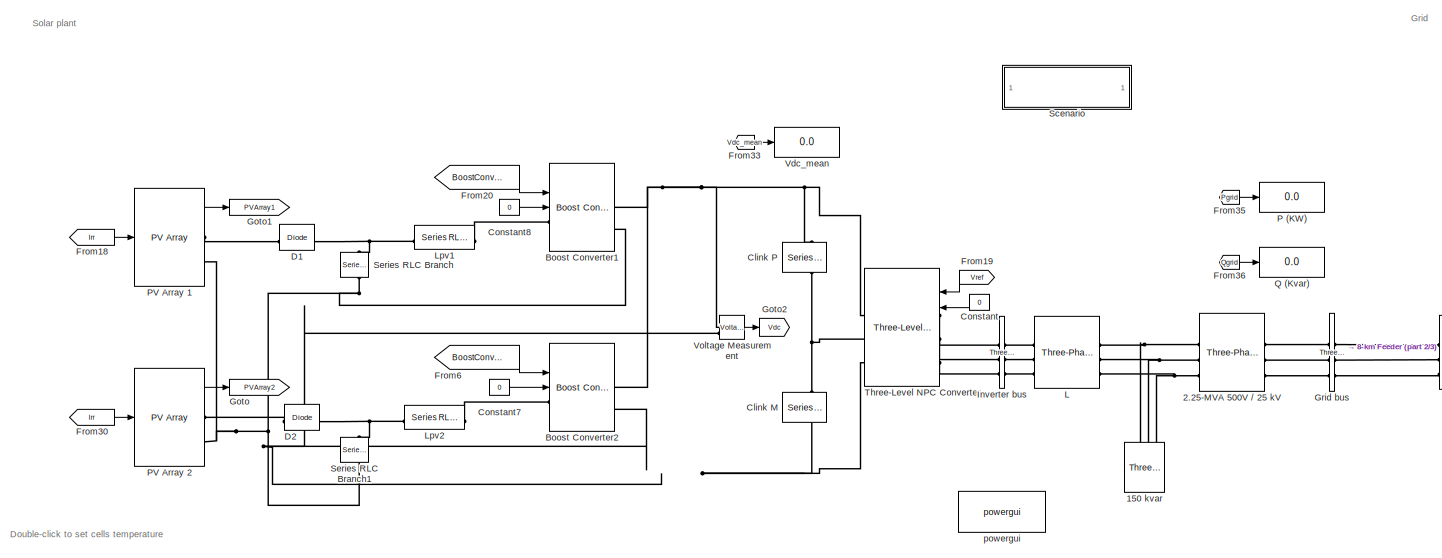
[diagram: root canvas - part 1/3, full width, top band]
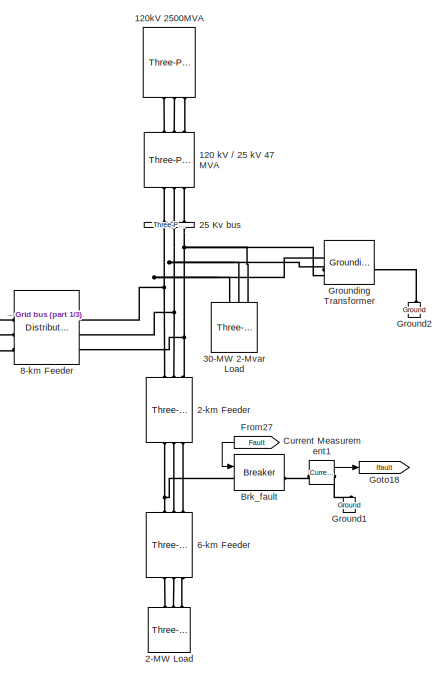
[diagram: root canvas - part 2/3, top right region]
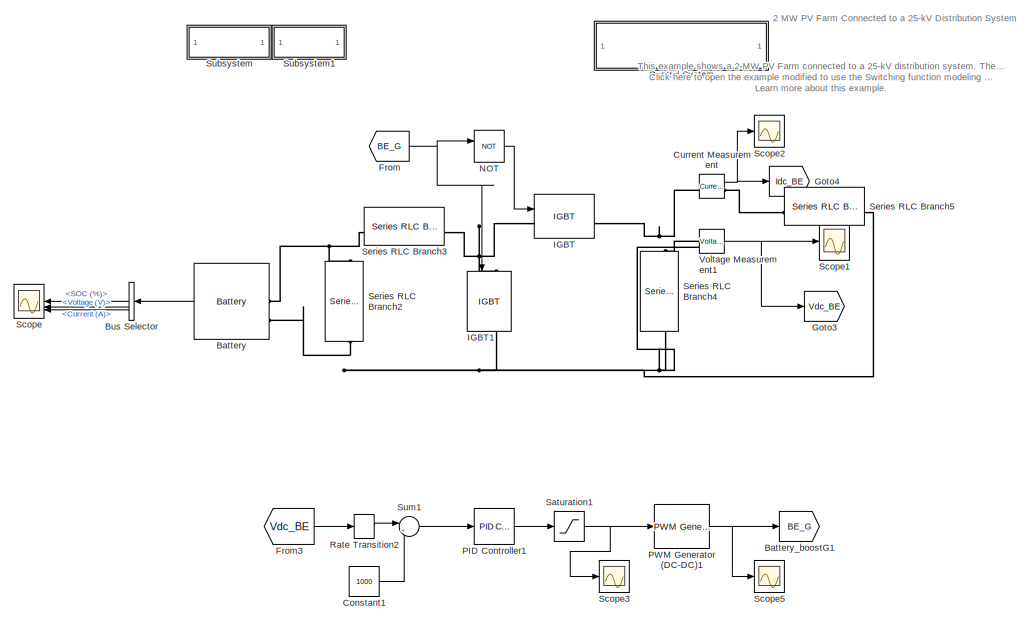
[diagram: root canvas - part 3/3, bottom left region]
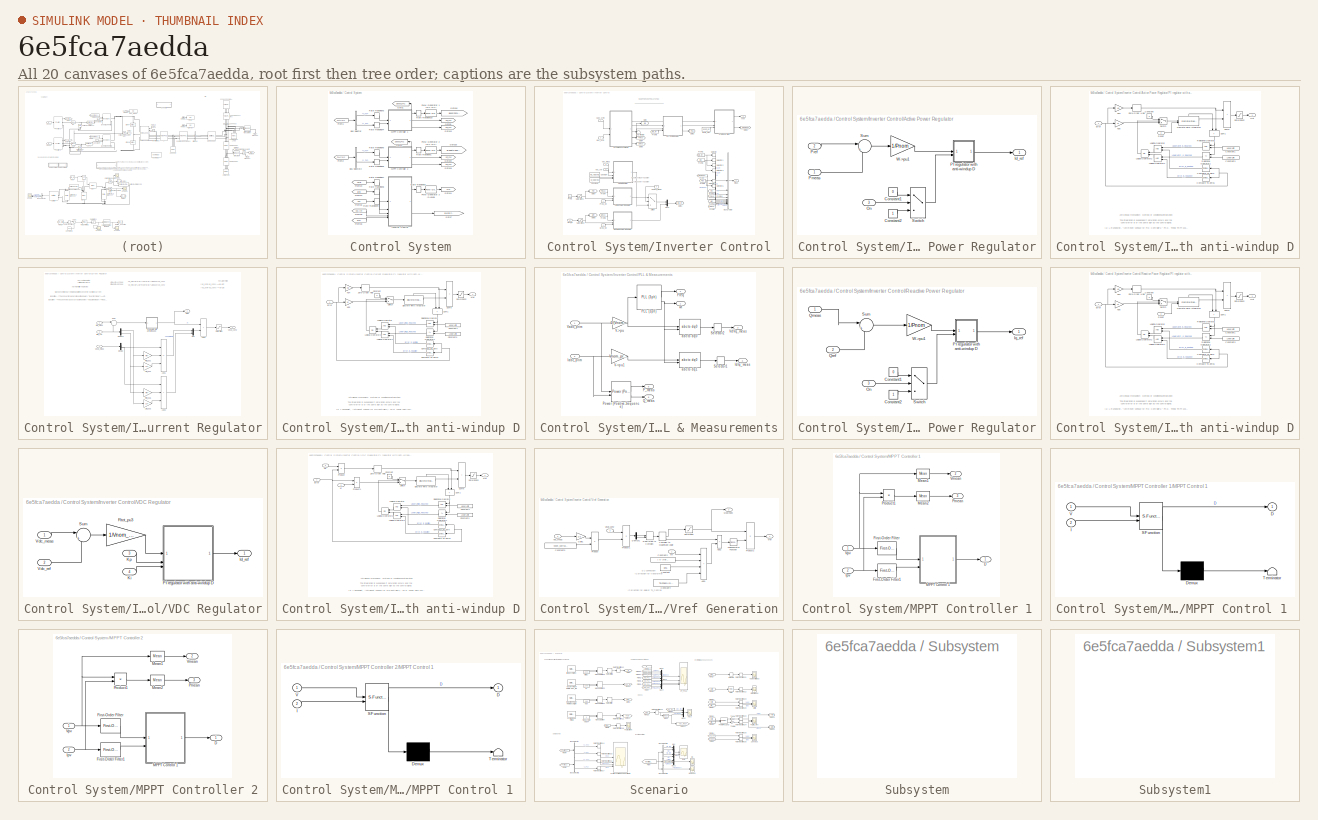
[diagram: thumbnail index - all 20 canvases of the model, root first then tree order]
MODEL slx_6e5fca7aedda
KIND model
CONFIG AbsTol = auto
CONFIG EnableMultiTasking = off
CONFIG FixedStep = Ts_Power
CONFIG MaxStep = auto
CONFIG MinStep = auto
CONFIG PreLoadFcn = Ts_Power=1e-6;\nTs=25e-6;\n
CONFIG RelTol = 1e-4
CONFIG SampleTimeConstraint = Unconstrained
CONFIG SolverName = FixedStepDiscrete
CONFIG StartTime = 0.0
CONFIG StopTime = 0.6
BLOCK [Reference] 120 kV // 25 kV 47 MVA  REF=spsThreePhaseTransformerTwoWindingsLib/Three-Phase
Transformer
(Two Windings)
  AttributesFormatString = \n
  LibrarySourceBlock = sps_lib/Power Grid Elements/Three-Phase\nTransformer\n(Two Windings)
  SourceBlock = spsThreePhaseTransformerTwoWindingsLib/Three-Phase\nTransformer\n(Two Windings)
  SourceType = Three-Phase Transformer (Two Windings)
BLOCK [Reference] 120kV 2500MVA  REF=spsThreePhaseSourceLib/Three-Phase Source
  LibrarySourceBlock = sps_lib/Sources/Three-Phase Source
  SourceBlock = spsThreePhaseSourceLib/Three-Phase Source
  SourceType = Three-Phase Source
BLOCK [Reference] 150 kvar  REF=spsThreePhaseSeriesRLCLoadLib/Three-Phase
Series RLC Load
  AttributesFormatString = \n
  LibrarySourceBlock = sps_lib/Passives/Three-Phase\nSeries RLC Load
  SourceBlock = spsThreePhaseSeriesRLCLoadLib/Three-Phase\nSeries RLC Load
  SourceType = Three-Phase Series RLC Load
BLOCK [Reference] 2-MW Load  REF=spsThreePhaseParallelRLCLoadLib/Three-Phase
Parallel RLC Load
  AttributesFormatString = \n
  LibrarySourceBlock = sps_lib/Passives/Three-Phase\nParallel RLC Load
  NameLocation = left
  SourceBlock = spsThreePhaseParallelRLCLoadLib/Three-Phase\nParallel RLC Load
  SourceType = Three-Phase Parallel RLC Load
BLOCK [Reference] 2-km Feeder  REF=spsThreePhasePISectionLineLib/Three-Phase
PI Section Line
  AttributesFormatString = \n
  LibrarySourceBlock = sps_lib/Power Grid Elements/Three-Phase\nPI Section Line
  SourceBlock = spsThreePhasePISectionLineLib/Three-Phase\nPI Section Line
  SourceType = Three-Phase PI Section Line
BLOCK [Reference] 2.25-MVA 500V // 25 kV  REF=spsThreePhaseTransformerTwoWindingsLib/Three-Phase
Transformer
(Two Windings)
  AttributesFormatString = \n
  LibrarySourceBlock = sps_lib/Power Grid Elements/Three-Phase\nTransformer\n(Two Windings)
  SourceBlock = spsThreePhaseTransformerTwoWindingsLib/Three-Phase\nTransformer\n(Two Windings)
  SourceType = Three-Phase Transformer (Two Windings)
BLOCK [Reference] 25 Kv bus  REF=spsThreePhaseVIMeasurementLib/Three-Phase
V-I Measurement
  LibrarySourceBlock = sps_lib/Sensors and Measurements/Three-Phase\nV-I Measurement
  NameLocation = left
  SourceBlock = spsThreePhaseVIMeasurementLib/Three-Phase\nV-I Measurement
  SourceType = Three-Phase VI Measurement
BLOCK [Reference] 30-MW 2-Mvar Load  REF=spsThreePhaseParallelRLCLoadLib/Three-Phase
Parallel RLC Load
  AttributesFormatString = \n
  LibrarySourceBlock = sps_lib/Passives/Three-Phase\nParallel RLC Load
  SourceBlock = spsThreePhaseParallelRLCLoadLib/Three-Phase\nParallel RLC Load
  SourceType = Three-Phase Parallel RLC Load
BLOCK [Reference] 6-km Feeder  REF=spsThreePhasePISectionLineLib/Three-Phase
PI Section Line
  AttributesFormatString = \n
  LibrarySourceBlock = sps_lib/Power Grid Elements/Three-Phase\nPI Section Line
  SourceBlock = spsThreePhasePISectionLineLib/Three-Phase\nPI Section Line
  SourceType = Three-Phase PI Section Line
BLOCK [Reference] 8-km Feeder  REF=spsDistributedParametersLineLib/Distributed Parameters Line
  LibrarySourceBlock = sps_lib/Power Grid Elements/Distributed Parameters Line
  SourceBlock = spsDistributedParametersLineLib/Distributed Parameters Line
  SourceType = Distributed Parameters Line
BLOCK [Reference] Battery  REF=spsBatteryLib/Battery
  LibrarySourceBlock = sps_lib/Sources/Battery
  SourceBlock = spsBatteryLib/Battery
  SourceType = Battery
BLOCK [Goto] Battery_boostG1
  GotoTag = BE_G
BLOCK [Reference] Boost Converter1  REF=spsBoostConverterLib/Boost Converter
  LibrarySourceBlock = sps_lib/Power Electronics/Boost Converter
  SourceBlock = spsBoostConverterLib/Boost Converter
  SourceType = Boost Converter
BLOCK [Reference] Boost Converter2  REF=spsBoostConverterLib/Boost Converter
  LibrarySourceBlock = sps_lib/Power Electronics/Boost Converter
  SourceBlock = spsBoostConverterLib/Boost Converter
  SourceType = Boost Converter
BLOCK [Reference] Brk_fault  REF=spsBreakerLib/Breaker
  LibrarySourceBlock = sps_lib/Power Grid Elements/Breaker
  SourceBlock = spsBreakerLib/Breaker
  SourceType = Breaker
BLOCK [BusSelector] Bus Selector
  NameLocation = top
  OutputSignals = SOC (%),Current (A),Voltage (V)
BLOCK [Reference] Clink M  REF=spsSeriesRLCBranchLib/Series RLC Branch
  LibrarySourceBlock = sps_lib/Passives/Series RLC Branch
  NameLocation = left
  SourceBlock = spsSeriesRLCBranchLib/Series RLC Branch
  SourceType = Series RLC Branch
BLOCK [Reference] Clink P  REF=spsSeriesRLCBranchLib/Series RLC Branch
  LibrarySourceBlock = sps_lib/Passives/Series RLC Branch
  NameLocation = left
  SourceBlock = spsSeriesRLCBranchLib/Series RLC Branch
  SourceType = Series RLC Branch
BLOCK [Constant] Constant
  SampleTime = Ts
  Value = 0
BLOCK [Constant] Constant1
  Value = 1000
BLOCK [Constant] Constant7
  SampleTime = Ts
  Value = 0
BLOCK [Constant] Constant8
  SampleTime = Ts
  Value = 0
BLOCK [SubSystem] Control System
BLOCK [BusSelector] Control System/Bus Selector
  OutputSignals = V_PV,I_PV
BLOCK [BusSelector] Control System/Bus Selector2
  OutputSignals = V_PV,I_PV
BLOCK [From] Control System/From1
  GotoTag = PVArray1
  TagVisibility = global
BLOCK [From] Control System/From2
  GotoTag = PVArray2
  TagVisibility = global
BLOCK [From] Control System/From23
  GotoTag = Vgrid
  TagVisibility = global
BLOCK [From] Control System/From24
  GotoTag = Igrid
  TagVisibility = global
BLOCK [From] Control System/From25
  GotoTag = Vdc
  TagVisibility = global
BLOCK [From] Control System/From26
  GotoTag = Qref
  TagVisibility = global
BLOCK [From] Control System/From28
  GotoTag = Vdc_ref
  TagVisibility = global
BLOCK [Goto] Control System/Goto1
  GotoTag = Dboost_PV1
  TagVisibility = global
BLOCK [Goto] Control System/Goto10
  GotoTag = BoostConverter1
  TagVisibility = global
BLOCK [Goto] Control System/Goto11
  GotoTag = Vref
  TagVisibility = global
BLOCK [Goto] Control System/Goto13
  GotoTag = Pm_PV1
  TagVisibility = global
BLOCK [Goto] Control System/Goto15
  GotoTag = BoostConverter2
  TagVisibility = global
BLOCK [Goto] Control System/Goto19
  GotoTag = Pm_PV2
  TagVisibility = global
BLOCK [Goto] Control System/Goto2
  GotoTag = Dboost_PV2
  TagVisibility = global
BLOCK [Goto] Control System/Goto20
  GotoTag = Vm_PV2
  TagVisibility = global
BLOCK [Goto] Control System/Goto7
  GotoTag = InverterControl
  TagVisibility = global
BLOCK [Goto] Control System/Goto9
  GotoTag = Vm_PV1
  TagVisibility = global
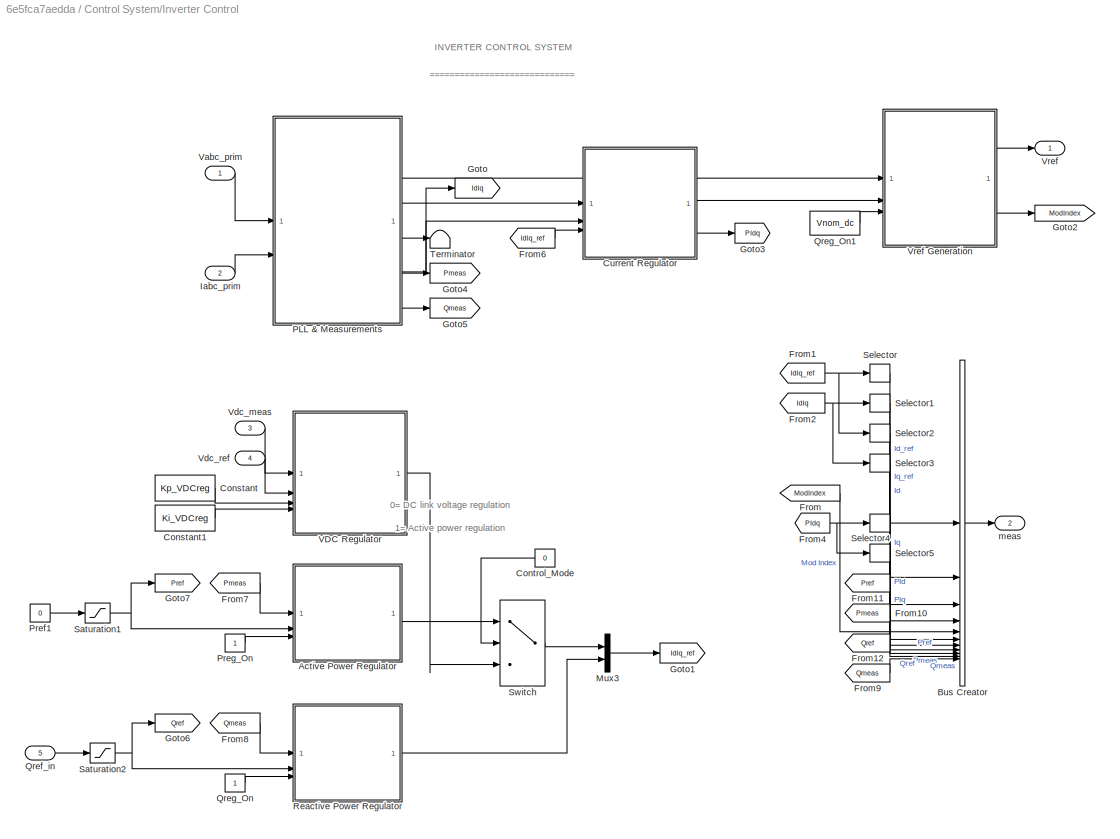
BLOCK [SubSystem] Control System/Inverter Control
BLOCK [SubSystem] Control System/Inverter Control/Active Power Regulator
BLOCK [Constant] Control System/Inverter Control/Active Power Regulator/Constant1
  Value = 0
BLOCK [Constant] Control System/Inverter Control/Active Power Regulator/Constant2
BLOCK [Outport] Control System/Inverter Control/Active Power Regulator/Id_ref
  InitialOutput = 0
  VectorParamsAs1DForOutWhenUnconnected = off
BLOCK [Inport] Control System/Inverter Control/Active Power Regulator/On
  Port = 3
  PortDimensions = 1
BLOCK [SubSystem] Control System/Inverter Control/Active Power Regulator/PI regulator with anti-windup D
  DialogController = POWERSYS.PowerSysDialog
BLOCK [Reference] Control System/Inverter Control/Active Power Regulator/PI regulator with anti-windup D/Compare To Zero  REF=simulink/Logic and Bit
Operations/Compare
To Zero
  SourceBlock = simulink/Logic and Bit\nOperations/Compare\nTo Zero
  SourceType = Compare To Zero
BLOCK [Reference] Control System/Inverter Control/Active Power Regulator/PI regulator with anti-windup D/Compare To Zero1  REF=simulink/Logic and Bit
Operations/Compare
To Zero
  SourceBlock = simulink/Logic and Bit\nOperations/Compare\nTo Zero
  SourceType = Compare To Zero
BLOCK [Constant] Control System/Inverter Control/Active Power Regulator/PI regulator with anti-windup D/Constant
  Value = 0
BLOCK [Constant] Control System/Inverter Control/Active Power Regulator/PI regulator with anti-windup D/Constant1
  Value = UpperLimit
BLOCK [Constant] Control System/Inverter Control/Active Power Regulator/PI regulator with anti-windup D/Constant3
  Value = LowerLimit
BLOCK [DiscreteIntegrator] Control System/Inverter Control/Active Power Regulator/PI regulator with anti-windup D/Discrete-Time Integrator
  ExternalReset = level
  ICPrevOutput = DiscIntNeverNeededParam
  ICPrevScaledInput = DiscIntNeverNeededParam
  InitialCondition = Init
  IntegratorMethod = Integration: Trapezoidal
  LimitOutput = on
  LowerSaturationLimit = LowerLimit
  SampleTime = Ts
  ShowStatePort = on
  UpperSaturationLimit = UpperLimit
BLOCK [Inport] Control System/Inverter Control/Active Power Regulator/PI regulator with anti-windup D/Error
  SampleTime = Ts
BLOCK [Gain] Control System/Inverter Control/Active Power Regulator/PI regulator with anti-windup D/Kp4
  Gain = Kp
  OutDataTypeStr = Inherit: Same as input
  ParamDataTypeStr = Inherit: Same as input
  SampleTime = Ts
  SaturateOnIntegerOverflow = on
BLOCK [Gain] Control System/Inverter Control/Active Power Regulator/PI regulator with anti-windup D/Kp5
  Gain = Ki
  OutDataTypeStr = Inherit: Same as input
  ParamDataTypeStr = Inherit: Same as input
  SampleTime = Ts
  SaturateOnIntegerOverflow = on
BLOCK [Logic] Control System/Inverter Control/Active Power Regulator/PI regulator with anti-windup D/Logical Operator
  AllPortsSameDT = off
  OutDataTypeStr = boolean
BLOCK [Logic] Control System/Inverter Control/Active Power Regulator/PI regulator with anti-windup D/Logical Operator1
  AllPortsSameDT = off
  OutDataTypeStr = boolean
BLOCK [Logic] Control System/Inverter Control/Active Power Regulator/PI regulator with anti-windup D/Logical Operator2
  AllPortsSameDT = off
  Operator = OR
  OutDataTypeStr = boolean
BLOCK [Outport] Control System/Inverter Control/Active Power Regulator/PI regulator with anti-windup D/Out
  InitialOutput = 0
  SampleTime = Ts
  VectorParamsAs1DForOutWhenUnconnected = off
BLOCK [RelationalOperator] Control System/Inverter Control/Active Power Regulator/PI regulator with anti-windup D/Relational Operator
  InputSameDT = off
  OutDataTypeStr = boolean
BLOCK [RelationalOperator] Control System/Inverter Control/Active Power Regulator/PI regulator with anti-windup D/Relational Operator1
  InputSameDT = off
  Operator = <=
  OutDataTypeStr = boolean
BLOCK [Inport] Control System/Inverter Control/Active Power Regulator/PI regulator with anti-windup D/Reset
  Port = 2
  SampleTime = Ts
BLOCK [Saturate] Control System/Inverter Control/Active Power Regulator/PI regulator with anti-windup D/Saturation2
  LowerLimit = LowerLimit
  NameLocation = top
  SampleTime = Ts
  UpperLimit = UpperLimit
BLOCK [Sum] Control System/Inverter Control/Active Power Regulator/PI regulator with anti-windup D/Sum1
  IconShape = rectangular
  InputSameDT = on
  NameLocation = left
  OutDataTypeStr = Inherit: Same as first input
  SampleTime = Ts
  SaturateOnIntegerOverflow = on
BLOCK [Sum] Control System/Inverter Control/Active Power Regulator/PI regulator with anti-windup D/Sum6
  IconShape = rectangular
  InputSameDT = on
  OutDataTypeStr = Inherit: Same as first input
  SampleTime = Ts
  SaturateOnIntegerOverflow = on
BLOCK [Switch] Control System/Inverter Control/Active Power Regulator/PI regulator with anti-windup D/Switch
  Criteria = u2 > Threshold
  InputSameDT = off
  SaturateOnIntegerOverflow = off
BLOCK [ZeroOrderHold] Control System/Inverter Control/Active Power Regulator/PI regulator with anti-windup D/Zero-Order Hold
  SampleTime = Ts
BLOCK [Inport] Control System/Inverter Control/Active Power Regulator/Pmeas
  PortDimensions = 1
BLOCK [Inport] Control System/Inverter Control/Active Power Regulator/Pref
  Port = 2
  PortDimensions = 1
BLOCK [Sum] Control System/Inverter Control/Active Power Regulator/Sum
  Inputs = |+-
BLOCK [Switch] Control System/Inverter Control/Active Power Regulator/Switch
  Criteria = u2 ~= 0
  InputSameDT = off
  SaturateOnIntegerOverflow = off
BLOCK [Gain] Control System/Inverter Control/Active Power Regulator/W->pu1
  Gain = 1/Pnom
  OutDataTypeStr = Inherit: Same as input
  ParamDataTypeStr = Inherit: Same as input
  SaturateOnIntegerOverflow = on
BLOCK [BusCreator] Control System/Inverter Control/Bus Creator
  DisplayOption = bar
  InheritFromInputs = on
  Inputs = 11
BLOCK [Constant] Control System/Inverter Control/Constant
  SampleTime = Ts
  Value = Kp_VDCreg
BLOCK [Constant] Control System/Inverter Control/Constant1
  SampleTime = Ts
  Value = Ki_VDCreg
BLOCK [Constant] Control System/Inverter Control/Control_Mode
  Value = 0
BLOCK [SubSystem] Control System/Inverter Control/Current Regulator
BLOCK [Sum] Control System/Inverter Control/Current Regulator/Add1
  IconShape = rectangular
  Inputs = ++-
BLOCK [Sum] Control System/Inverter Control/Current Regulator/Add2
  IconShape = rectangular
BLOCK [Sum] Control System/Inverter Control/Current Regulator/Add3
  IconShape = rectangular
  Inputs = +++
BLOCK [Demux] Control System/Inverter Control/Current Regulator/Demux
  Outputs = 2
BLOCK [Demux] Control System/Inverter Control/Current Regulator/Demux1
  Outputs = 2
BLOCK [Inport] Control System/Inverter Control/Current Regulator/IdIq_meas
  Port = 2
  PortDimensions = 2
BLOCK [Inport] Control System/Inverter Control/Current Regulator/IdIq_ref
  Port = 3
  PortDimensions = 2
BLOCK [Gain] Control System/Inverter Control/Current Regulator/Ltot_pu1
  Gain = Lff
  OutDataTypeStr = Inherit: Same as input
  ParamDataTypeStr = Inherit: Same as input
  SaturateOnIntegerOverflow = on
BLOCK [Gain] Control System/Inverter Control/Current Regulator/Ltot_pu2
  Gain = Lff
  OutDataTypeStr = Inherit: Same as input
  ParamDataTypeStr = Inherit: Same as input
  SaturateOnIntegerOverflow = on
BLOCK [Mux] Control System/Inverter Control/Current Regulator/Mux
  DisplayOption = bar
  Inputs = 2
BLOCK [SubSystem] Control System/Inverter Control/Current Regulator/PI regulator with anti-windup D
  DialogController = POWERSYS.PowerSysDialog
BLOCK [Reference] Control System/Inverter Control/Current Regulator/PI regulator with anti-windup D/Compare To Zero  REF=simulink/Logic and Bit
Operations/Compare
To Zero
  SourceBlock = simulink/Logic and Bit\nOperations/Compare\nTo Zero
  SourceType = Compare To Zero
BLOCK [Reference] Control System/Inverter Control/Current Regulator/PI regulator with anti-windup D/Compare To Zero1  REF=simulink/Logic and Bit
Operations/Compare
To Zero
  SourceBlock = simulink/Logic and Bit\nOperations/Compare\nTo Zero
  SourceType = Compare To Zero
BLOCK [Constant] Control System/Inverter Control/Current Regulator/PI regulator with anti-windup D/Constant
  Value = 0
BLOCK [Constant] Control System/Inverter Control/Current Regulator/PI regulator with anti-windup D/Constant1
  Value = UpperLimit
BLOCK [Constant] Control System/Inverter Control/Current Regulator/PI regulator with anti-windup D/Constant3
  Value = LowerLimit
BLOCK [DiscreteIntegrator] Control System/Inverter Control/Current Regulator/PI regulator with anti-windup D/Discrete-Time Integrator
  ICPrevOutput = DiscIntNeverNeededParam
  ICPrevScaledInput = DiscIntNeverNeededParam
  InitialCondition = Init
  IntegratorMethod = Integration: Trapezoidal
  LimitOutput = on
  LowerSaturationLimit = LowerLimit
  SampleTime = Ts
  ShowStatePort = on
  UpperSaturationLimit = UpperLimit
BLOCK [Inport] Control System/Inverter Control/Current Regulator/PI regulator with anti-windup D/Error
  SampleTime = Ts
BLOCK [Gain] Control System/Inverter Control/Current Regulator/PI regulator with anti-windup D/Kp4
  Gain = Kp
  OutDataTypeStr = Inherit: Same as input
  ParamDataTypeStr = Inherit: Same as input
  SampleTime = Ts
  SaturateOnIntegerOverflow = on
BLOCK [Gain] Control System/Inverter Control/Current Regulator/PI regulator with anti-windup D/Kp5
  Gain = Ki
  OutDataTypeStr = Inherit: Same as input
  ParamDataTypeStr = Inherit: Same as input
  SampleTime = Ts
  SaturateOnIntegerOverflow = on
BLOCK [Logic] Control System/Inverter Control/Current Regulator/PI regulator with anti-windup D/Logical Operator
  AllPortsSameDT = off
  OutDataTypeStr = boolean
BLOCK [Logic] Control System/Inverter Control/Current Regulator/PI regulator with anti-windup D/Logical Operator1
  AllPortsSameDT = off
  OutDataTypeStr = boolean
BLOCK [Logic] Control System/Inverter Control/Current Regulator/PI regulator with anti-windup D/Logical Operator2
  AllPortsSameDT = off
  Operator = OR
  OutDataTypeStr = boolean
BLOCK [Outport] Control System/Inverter Control/Current Regulator/PI regulator with anti-windup D/Out
  InitialOutput = 0
  SampleTime = Ts
  VectorParamsAs1DForOutWhenUnconnected = off
BLOCK [RelationalOperator] Control System/Inverter Control/Current Regulator/PI regulator with anti-windup D/Relational Operator
  InputSameDT = off
  OutDataTypeStr = boolean
BLOCK [RelationalOperator] Control System/Inverter Control/Current Regulator/PI regulator with anti-windup D/Relational Operator1
  InputSameDT = off
  Operator = <=
  OutDataTypeStr = boolean
BLOCK [Saturate] Control System/Inverter Control/Current Regulator/PI regulator with anti-windup D/Saturation2
  LowerLimit = LowerLimit
  NameLocation = top
  SampleTime = Ts
  UpperLimit = UpperLimit
BLOCK [Sum] Control System/Inverter Control/Current Regulator/PI regulator with anti-windup D/Sum1
  IconShape = rectangular
  InputSameDT = on
  NameLocation = left
  OutDataTypeStr = Inherit: Same as first input
  SampleTime = Ts
  SaturateOnIntegerOverflow = on
BLOCK [Sum] Control System/Inverter Control/Current Regulator/PI regulator with anti-windup D/Sum6
  IconShape = rectangular
  InputSameDT = on
  OutDataTypeStr = Inherit: Same as first input
  SampleTime = Ts
  SaturateOnIntegerOverflow = on
BLOCK [Switch] Control System/Inverter Control/Current Regulator/PI regulator with anti-windup D/Switch
  Criteria = u2 > Threshold
  InputSameDT = off
  SaturateOnIntegerOverflow = off
BLOCK [ZeroOrderHold] Control System/Inverter Control/Current Regulator/PI regulator with anti-windup D/Zero-Order Hold
  SampleTime = Ts
BLOCK [Outport] Control System/Inverter Control/Current Regulator/PIdq
  Port = 2
  VectorParamsAs1DForOutWhenUnconnected = off
BLOCK [Gain] Control System/Inverter Control/Current Regulator/Rtot_pu1
  Gain = Rff
  NameLocation = top
  OutDataTypeStr = Inherit: Same as input
  ParamDataTypeStr = Inherit: Same as input
  SaturateOnIntegerOverflow = on
BLOCK [Gain] Control System/Inverter Control/Current Regulator/Rtot_pu5
  Gain = Rff
  NameLocation = top
  OutDataTypeStr = Inherit: Same as input
  ParamDataTypeStr = Inherit: Same as input
  SaturateOnIntegerOverflow = on
BLOCK [Saturate] Control System/Inverter Control/Current Regulator/Saturation
  LowerLimit = Limits_Ireg(2)
  UpperLimit = Limits_Ireg(1)
BLOCK [Sum] Control System/Inverter Control/Current Regulator/Sum
  Inputs = |-+
BLOCK [Outport] Control System/Inverter Control/Current Regulator/VdVq_conv
  VectorParamsAs1DForOutWhenUnconnected = off
BLOCK [Inport] Control System/Inverter Control/Current Regulator/VdVq_meas
  PortDimensions = 2
BLOCK [From] Control System/Inverter Control/From
  GotoTag = ModIndex
BLOCK [From] Control System/Inverter Control/From1
  GotoTag = IdIq_ref
BLOCK [From] Control System/Inverter Control/From10
  GotoTag = Pmeas
BLOCK [From] Control System/Inverter Control/From11
  GotoTag = Pref
BLOCK [From] Control System/Inverter Control/From12
  GotoTag = Qref
BLOCK [From] Control System/Inverter Control/From2
  GotoTag = IdIq
BLOCK [From] Control System/Inverter Control/From4
  GotoTag = PIdq
BLOCK [From] Control System/Inverter Control/From6
  GotoTag = IdIq_ref
BLOCK [From] Control System/Inverter Control/From7
  GotoTag = Pmeas
BLOCK [From] Control System/Inverter Control/From8
  GotoTag = Qmeas
BLOCK [From] Control System/Inverter Control/From9
  GotoTag = Qmeas
BLOCK [Goto] Control System/Inverter Control/Goto
  GotoTag = IdIq
BLOCK [Goto] Control System/Inverter Control/Goto1
  GotoTag = IdIq_ref
BLOCK [Goto] Control System/Inverter Control/Goto2
  GotoTag = ModIndex
BLOCK [Goto] Control System/Inverter Control/Goto3
  GotoTag = PIdq
BLOCK [Goto] Control System/Inverter Control/Goto4
  GotoTag = Pmeas
BLOCK [Goto] Control System/Inverter Control/Goto5
  GotoTag = Qmeas
BLOCK [Goto] Control System/Inverter Control/Goto6
  GotoTag = Qref
BLOCK [Goto] Control System/Inverter Control/Goto7
  GotoTag = Pref
BLOCK [Inport] Control System/Inverter Control/Iabc_prim
  Port = 2
  PortDimensions = 3
BLOCK [Mux] Control System/Inverter Control/Mux3
  DisplayOption = bar
  Inputs = 2
BLOCK [SubSystem] Control System/Inverter Control/PLL & Measurements
BLOCK [Outport] Control System/Inverter Control/PLL & Measurements/Freq
  Port = 4
  VectorParamsAs1DForOutWhenUnconnected = off
BLOCK [Inport] Control System/Inverter Control/PLL & Measurements/Iabc_prim
  Port = 2
BLOCK [Outport] Control System/Inverter Control/PLL & Measurements/IdIq_meas
  Port = 3
  VectorParamsAs1DForOutWhenUnconnected = off
BLOCK [Reference] Control System/Inverter Control/PLL & Measurements/PLL (3ph)  REF=spsPLL3phLib/PLL
(3ph)
  LibrarySourceBlock = sps_lib/Control/PLL\n(3ph)
  SourceBlock = spsPLL3phLib/PLL\n(3ph)
  SourceType = PLL (3ph)
BLOCK [Outport] Control System/Inverter Control/PLL & Measurements/P_meas
  Port = 5
  VectorParamsAs1DForOutWhenUnconnected = off
BLOCK [Reference] Control System/Inverter Control/PLL & Measurements/Power (Positive-Sequence)  REF=spsPowerPositiveSequenceLib/Power
(Positive-Sequence)
  LibrarySourceBlock = sps_lib/Sensors and Measurements/Power\n(Positive-Sequence)
  SourceBlock = spsPowerPositiveSequenceLib/Power\n(Positive-Sequence)
  SourceType = Power (Positive-Sequence)
BLOCK [Outport] Control System/Inverter Control/PLL & Measurements/Q_meas
  Port = 6
  VectorParamsAs1DForOutWhenUnconnected = off
BLOCK [Selector] Control System/Inverter Control/PLL & Measurements/Selector1
  IndexOptions = Index vector (dialog)
  Indices = [1 2]
  InputPortWidth = 3
  OutputSizes = 1
BLOCK [Selector] Control System/Inverter Control/PLL & Measurements/Selector2
  IndexOptions = Index vector (dialog)
  Indices = [1 2]
  InputPortWidth = 3
  OutputSizes = 1
BLOCK [Gain] Control System/Inverter Control/PLL & Measurements/V->pu
  Gain = 1/(Vnom_prim*sqrt(2)/sqrt(3))
  OutDataTypeStr = Inherit: Same as input
  ParamDataTypeStr = Inherit: Same as input
  SaturateOnIntegerOverflow = on
BLOCK [Gain] Control System/Inverter Control/PLL & Measurements/V->pu1
  Gain = Vnom_prim*sqrt(3)/Pnom/sqrt(2)
  OutDataTypeStr = Inherit: Same as input
  ParamDataTypeStr = Inherit: Same as input
  SaturateOnIntegerOverflow = on
BLOCK [Inport] Control System/Inverter Control/PLL & Measurements/Vabc_prim
BLOCK [Outport] Control System/Inverter Control/PLL & Measurements/VdVq_meas
  Port = 2
  VectorParamsAs1DForOutWhenUnconnected = off
BLOCK [Reference] Control System/Inverter Control/PLL & Measurements/abc to dq0  REF=spsabctodq0Lib/abc to dq0
  LibrarySourceBlock = sps_lib/Control/abc to dq0
  SourceBlock = spsabctodq0Lib/abc to dq0
  SourceType = abc to dq0 Transformation
BLOCK [Reference] Control System/Inverter Control/PLL & Measurements/abc to dq1  REF=spsabctodq0Lib/abc to dq0
  LibrarySourceBlock = sps_lib/Control/abc to dq0
  SourceBlock = spsabctodq0Lib/abc to dq0
  SourceType = abc to dq0 Transformation
BLOCK [Outport] Control System/Inverter Control/PLL & Measurements/wt
  VectorParamsAs1DForOutWhenUnconnected = off
BLOCK [Constant] Control System/Inverter Control/Pref1
  SampleTime = Ts
  Value = 0
BLOCK [Constant] Control System/Inverter Control/Preg_On
BLOCK [Inport] Control System/Inverter Control/Qref_in
  Port = 5
  PortDimensions = 1
BLOCK [Constant] Control System/Inverter Control/Qreg_On
BLOCK [Constant] Control System/Inverter Control/Qreg_On1
  Value = Vnom_dc
BLOCK [SubSystem] Control System/Inverter Control/Reactive Power Regulator
BLOCK [Constant] Control System/Inverter Control/Reactive Power Regulator/Constant1
  Value = 0
BLOCK [Constant] Control System/Inverter Control/Reactive Power Regulator/Constant2
BLOCK [Outport] Control System/Inverter Control/Reactive Power Regulator/Iq_ref
  InitialOutput = 0
  VectorParamsAs1DForOutWhenUnconnected = off
BLOCK [Inport] Control System/Inverter Control/Reactive Power Regulator/On
  Port = 3
  PortDimensions = 1
BLOCK [SubSystem] Control System/Inverter Control/Reactive Power Regulator/PI regulator with anti-windup D
  DialogController = POWERSYS.PowerSysDialog
BLOCK [Reference] Control System/Inverter Control/Reactive Power Regulator/PI regulator with anti-windup D/Compare To Zero  REF=simulink/Logic and Bit
Operations/Compare
To Zero
  SourceBlock = simulink/Logic and Bit\nOperations/Compare\nTo Zero
  SourceType = Compare To Zero
BLOCK [Reference] Control System/Inverter Control/Reactive Power Regulator/PI regulator with anti-windup D/Compare To Zero1  REF=simulink/Logic and Bit
Operations/Compare
To Zero
  SourceBlock = simulink/Logic and Bit\nOperations/Compare\nTo Zero
  SourceType = Compare To Zero
BLOCK [Constant] Control System/Inverter Control/Reactive Power Regulator/PI regulator with anti-windup D/Constant
  Value = 0
BLOCK [Constant] Control System/Inverter Control/Reactive Power Regulator/PI regulator with anti-windup D/Constant1
  Value = UpperLimit
BLOCK [Constant] Control System/Inverter Control/Reactive Power Regulator/PI regulator with anti-windup D/Constant3
  Value = LowerLimit
BLOCK [DiscreteIntegrator] Control System/Inverter Control/Reactive Power Regulator/PI regulator with anti-windup D/Discrete-Time Integrator
  ExternalReset = level
  ICPrevOutput = DiscIntNeverNeededParam
  ICPrevScaledInput = DiscIntNeverNeededParam
  InitialCondition = Init
  IntegratorMethod = Integration: Trapezoidal
  LimitOutput = on
  LowerSaturationLimit = LowerLimit
  SampleTime = Ts
  ShowStatePort = on
  UpperSaturationLimit = UpperLimit
BLOCK [Inport] Control System/Inverter Control/Reactive Power Regulator/PI regulator with anti-windup D/Error
  SampleTime = Ts
BLOCK [Gain] Control System/Inverter Control/Reactive Power Regulator/PI regulator with anti-windup D/Kp4
  Gain = Kp
  OutDataTypeStr = Inherit: Same as input
  ParamDataTypeStr = Inherit: Same as input
  SampleTime = Ts
  SaturateOnIntegerOverflow = on
BLOCK [Gain] Control System/Inverter Control/Reactive Power Regulator/PI regulator with anti-windup D/Kp5
  Gain = Ki
  OutDataTypeStr = Inherit: Same as input
  ParamDataTypeStr = Inherit: Same as input
  SampleTime = Ts
  SaturateOnIntegerOverflow = on
BLOCK [Logic] Control System/Inverter Control/Reactive Power Regulator/PI regulator with anti-windup D/Logical Operator
  AllPortsSameDT = off
  OutDataTypeStr = boolean
BLOCK [Logic] Control System/Inverter Control/Reactive Power Regulator/PI regulator with anti-windup D/Logical Operator1
  AllPortsSameDT = off
  OutDataTypeStr = boolean
BLOCK [Logic] Control System/Inverter Control/Reactive Power Regulator/PI regulator with anti-windup D/Logical Operator2
  AllPortsSameDT = off
  Operator = OR
  OutDataTypeStr = boolean
BLOCK [Outport] Control System/Inverter Control/Reactive Power Regulator/PI regulator with anti-windup D/Out
  InitialOutput = 0
  SampleTime = Ts
  VectorParamsAs1DForOutWhenUnconnected = off
BLOCK [RelationalOperator] Control System/Inverter Control/Reactive Power Regulator/PI regulator with anti-windup D/Relational Operator
  InputSameDT = off
  OutDataTypeStr = boolean
BLOCK [RelationalOperator] Control System/Inverter Control/Reactive Power Regulator/PI regulator with anti-windup D/Relational Operator1
  InputSameDT = off
  Operator = <=
  OutDataTypeStr = boolean
BLOCK [Inport] Control System/Inverter Control/Reactive Power Regulator/PI regulator with anti-windup D/Reset
  Port = 2
  SampleTime = Ts
BLOCK [Saturate] Control System/Inverter Control/Reactive Power Regulator/PI regulator with anti-windup D/Saturation2
  LowerLimit = LowerLimit
  NameLocation = top
  SampleTime = Ts
  UpperLimit = UpperLimit
BLOCK [Sum] Control System/Inverter Control/Reactive Power Regulator/PI regulator with anti-windup D/Sum1
  IconShape = rectangular
  InputSameDT = on
  NameLocation = left
  OutDataTypeStr = Inherit: Same as first input
  SampleTime = Ts
  SaturateOnIntegerOverflow = on
BLOCK [Sum] Control System/Inverter Control/Reactive Power Regulator/PI regulator with anti-windup D/Sum6
  IconShape = rectangular
  InputSameDT = on
  OutDataTypeStr = Inherit: Same as first input
  SampleTime = Ts
  SaturateOnIntegerOverflow = on
BLOCK [Switch] Control System/Inverter Control/Reactive Power Regulator/PI regulator with anti-windup D/Switch
  Criteria = u2 > Threshold
  InputSameDT = off
  SaturateOnIntegerOverflow = off
BLOCK [ZeroOrderHold] Control System/Inverter Control/Reactive Power Regulator/PI regulator with anti-windup D/Zero-Order Hold
  SampleTime = Ts
BLOCK [Inport] Control System/Inverter Control/Reactive Power Regulator/Qmeas
  PortDimensions = 1
BLOCK [Inport] Control System/Inverter Control/Reactive Power Regulator/Qref
  Port = 2
  PortDimensions = 1
BLOCK [Sum] Control System/Inverter Control/Reactive Power Regulator/Sum
  Inputs = |+-
BLOCK [Switch] Control System/Inverter Control/Reactive Power Regulator/Switch
  Criteria = u2 ~= 0
  InputSameDT = off
  SaturateOnIntegerOverflow = off
BLOCK [Gain] Control System/Inverter Control/Reactive Power Regulator/W->pu1
  Gain = 1/Pnom
  OutDataTypeStr = Inherit: Same as input
  ParamDataTypeStr = Inherit: Same as input
  SaturateOnIntegerOverflow = on
BLOCK [Saturate] Control System/Inverter Control/Saturation1
  LowerLimit = -2e6
  UpperLimit = 2e6
BLOCK [Saturate] Control System/Inverter Control/Saturation2
  LowerLimit = -1e6
  UpperLimit = 1e6
BLOCK [Selector] Control System/Inverter Control/Selector
  IndexOptions = Index vector (dialog)
  Indices = 1
  InputPortWidth = 2
  OutputSizes = 1
BLOCK [Selector] Control System/Inverter Control/Selector1
  IndexOptions = Index vector (dialog)
  Indices = 1
  InputPortWidth = 2
  OutputSizes = 1
BLOCK [Selector] Control System/Inverter Control/Selector2
  IndexOptions = Index vector (dialog)
  Indices = 2
  InputPortWidth = 2
  OutputSizes = 1
BLOCK [Selector] Control System/Inverter Control/Selector3
  IndexOptions = Index vector (dialog)
  Indices = 2
  InputPortWidth = 2
  OutputSizes = 1
BLOCK [Selector] Control System/Inverter Control/Selector4
  IndexOptions = Index vector (dialog)
  Indices = 1
  InputPortWidth = 2
  OutputSizes = 1
BLOCK [Selector] Control System/Inverter Control/Selector5
  IndexOptions = Index vector (dialog)
  Indices = 2
  InputPortWidth = 2
  OutputSizes = 1
BLOCK [Switch] Control System/Inverter Control/Switch
  Criteria = u2 ~= 0
  InputSameDT = off
  SaturateOnIntegerOverflow = off
BLOCK [Terminator] Control System/Inverter Control/Terminator
BLOCK [SubSystem] Control System/Inverter Control/VDC Regulator
BLOCK [Outport] Control System/Inverter Control/VDC Regulator/Id_ref
  InitialOutput = 0
  SampleTime = Ts
  VectorParamsAs1DForOutWhenUnconnected = off
BLOCK [Inport] Control System/Inverter Control/VDC Regulator/Ki
  Port = 4
  PortDimensions = 1
BLOCK [Inport] Control System/Inverter Control/VDC Regulator/Kp
  Port = 3
  PortDimensions = 1
BLOCK [SubSystem] Control System/Inverter Control/VDC Regulator/PI regulator with anti-windup D
  DialogController = POWERSYS.PowerSysDialog
BLOCK [Reference] Control System/Inverter Control/VDC Regulator/PI regulator with anti-windup D/Compare To Zero  REF=simulink/Logic and Bit
Operations/Compare
To Zero
  SourceBlock = simulink/Logic and Bit\nOperations/Compare\nTo Zero
  SourceType = Compare To Zero
BLOCK [Reference] Control System/Inverter Control/VDC Regulator/PI regulator with anti-windup D/Compare To Zero1  REF=simulink/Logic and Bit
Operations/Compare
To Zero
  SourceBlock = simulink/Logic and Bit\nOperations/Compare\nTo Zero
  SourceType = Compare To Zero
BLOCK [Constant] Control System/Inverter Control/VDC Regulator/PI regulator with anti-windup D/Constant
  Value = 0
BLOCK [Constant] Control System/Inverter Control/VDC Regulator/PI regulator with anti-windup D/Constant1
  Value = UpperLimit
BLOCK [Constant] Control System/Inverter Control/VDC Regulator/PI regulator with anti-windup D/Constant3
  Value = LowerLimit
BLOCK [DiscreteIntegrator] Control System/Inverter Control/VDC Regulator/PI regulator with anti-windup D/Discrete-Time Integrator
  ICPrevOutput = DiscIntNeverNeededParam
  ICPrevScaledInput = DiscIntNeverNeededParam
  InitialCondition = Init
  IntegratorMethod = Integration: Trapezoidal
  LimitOutput = on
  LowerSaturationLimit = LowerLimit
  SampleTime = Ts
  ShowStatePort = on
  UpperSaturationLimit = UpperLimit
BLOCK [Inport] Control System/Inverter Control/VDC Regulator/PI regulator with anti-windup D/Error
  SampleTime = Ts
BLOCK [Inport] Control System/Inverter Control/VDC Regulator/PI regulator with anti-windup D/Ki
  Port = 3
  SampleTime = Ts
BLOCK [Inport] Control System/Inverter Control/VDC Regulator/PI regulator with anti-windup D/Kp
  Port = 2
  SampleTime = Ts
BLOCK [Logic] Control System/Inverter Control/VDC Regulator/PI regulator with anti-windup D/Logical Operator
  AllPortsSameDT = off
  OutDataTypeStr = boolean
BLOCK [Logic] Control System/Inverter Control/VDC Regulator/PI regulator with anti-windup D/Logical Operator1
  AllPortsSameDT = off
  OutDataTypeStr = boolean
BLOCK [Logic] Control System/Inverter Control/VDC Regulator/PI regulator with anti-windup D/Logical Operator2
  AllPortsSameDT = off
  Operator = OR
  OutDataTypeStr = boolean
BLOCK [Outport] Control System/Inverter Control/VDC Regulator/PI regulator with anti-windup D/Out
  InitialOutput = 0
  SampleTime = Ts
  VectorParamsAs1DForOutWhenUnconnected = off
BLOCK [Product] Control System/Inverter Control/VDC Regulator/PI regulator with anti-windup D/Product
BLOCK [Product] Control System/Inverter Control/VDC Regulator/PI regulator with anti-windup D/Product1
BLOCK [RelationalOperator] Control System/Inverter Control/VDC Regulator/PI regulator with anti-windup D/Relational Operator
  InputSameDT = off
  OutDataTypeStr = boolean
BLOCK [RelationalOperator] Control System/Inverter Control/VDC Regulator/PI regulator with anti-windup D/Relational Operator1
  InputSameDT = off
  Operator = <=
  OutDataTypeStr = boolean
BLOCK [Saturate] Control System/Inverter Control/VDC Regulator/PI regulator with anti-windup D/Saturation2
  LowerLimit = LowerLimit
  NameLocation = top
  SampleTime = Ts
  UpperLimit = UpperLimit
BLOCK [Sum] Control System/Inverter Control/VDC Regulator/PI regulator with anti-windup D/Sum1
  IconShape = rectangular
  InputSameDT = on
  NameLocation = left
  OutDataTypeStr = Inherit: Same as first input
  SampleTime = Ts
  SaturateOnIntegerOverflow = on
BLOCK [Sum] Control System/Inverter Control/VDC Regulator/PI regulator with anti-windup D/Sum6
  IconShape = rectangular
  InputSameDT = on
  OutDataTypeStr = Inherit: Same as first input
  SampleTime = Ts
  SaturateOnIntegerOverflow = on
BLOCK [Switch] Control System/Inverter Control/VDC Regulator/PI regulator with anti-windup D/Switch
  Criteria = u2 > Threshold
  InputSameDT = off
  SaturateOnIntegerOverflow = off
BLOCK [ZeroOrderHold] Control System/Inverter Control/VDC Regulator/PI regulator with anti-windup D/Zero-Order Hold
  SampleTime = Ts
BLOCK [Gain] Control System/Inverter Control/VDC Regulator/Rtot_pu3
  Gain = 1/Vnom_dc
  OutDataTypeStr = Inherit: Same as input
  ParamDataTypeStr = Inherit: Same as input
  SaturateOnIntegerOverflow = on
BLOCK [Sum] Control System/Inverter Control/VDC Regulator/Sum
  Inputs = |+-
BLOCK [Inport] Control System/Inverter Control/VDC Regulator/Vdc_meas
  PortDimensions = 1
BLOCK [Inport] Control System/Inverter Control/VDC Regulator/Vdc_ref
  Port = 2
  PortDimensions = 1
BLOCK [Inport] Control System/Inverter Control/Vabc_prim
  PortDimensions = 3
BLOCK [Inport] Control System/Inverter Control/Vdc_meas
  Port = 3
  PortDimensions = 1
BLOCK [Inport] Control System/Inverter Control/Vdc_ref
  Port = 4
  PortDimensions = 1
BLOCK [Outport] Control System/Inverter Control/Vref
  NameLocation = top
  VectorParamsAs1DForOutWhenUnconnected = off
BLOCK [SubSystem] Control System/Inverter Control/Vref Generation
BLOCK [Sum] Control System/Inverter Control/Vref Generation/Add1
  IconShape = rectangular
  Inputs = ++++
BLOCK [Sum] Control System/Inverter Control/Vref Generation/Add2
  IconShape = rectangular
BLOCK [ComplexToMagnitudeAngle] Control System/Inverter Control/Vref Generation/Complex to Magnitude-Angle
BLOCK [Constant] Control System/Inverter Control/Vref Generation/Constant
  Value = -pi/6
BLOCK [Constant] Control System/Inverter Control/Vref Generation/Constant2
  Value = [ 0  -2*pi/3  2*pi/3  ]
BLOCK [Constant] Control System/Inverter Control/Vref Generation/Constant3
  Value = Vnom_sec*sqrt(2)/sqrt(3)
BLOCK [Constant] Control System/Inverter Control/Vref Generation/Constant4
  Value = Ts*Fnom*(2*pi)
BLOCK [Demux] Control System/Inverter Control/Vref Generation/Demux1
  Outputs = 2
BLOCK [Gain] Control System/Inverter Control/Vref Generation/Gain1
  Gain = 1/2
BLOCK [Outport] Control System/Inverter Control/Vref Generation/ModIndex
  Port = 2
  VectorParamsAs1DForOutWhenUnconnected = off
BLOCK [Product] Control System/Inverter Control/Vref Generation/Product
  Inputs = */
  RndMeth = Zero
BLOCK [Product] Control System/Inverter Control/Vref Generation/Product1
  Inputs = */
  RndMeth = Zero
BLOCK [Product] Control System/Inverter Control/Vref Generation/Product2
  Inputs = **
  RndMeth = Zero
BLOCK [RealImagToComplex] Control System/Inverter Control/Vref Generation/Real-Imag to Complex
BLOCK [Saturate] Control System/Inverter Control/Vref Generation/Saturation
  LowerLimit = 0
  UpperLimit = 1
BLOCK [Trigonometry] Control System/Inverter Control/Vref Generation/Trigonometric Function
BLOCK [Inport] Control System/Inverter Control/Vref Generation/VdVq_conv
  Port = 2
BLOCK [Inport] Control System/Inverter Control/Vref Generation/Vdc_meas
  Port = 3
BLOCK [Outport] Control System/Inverter Control/Vref Generation/Vref
  VectorParamsAs1DForOutWhenUnconnected = off
BLOCK [Inport] Control System/Inverter Control/Vref Generation/wt
BLOCK [Outport] Control System/Inverter Control/meas
  NameLocation = top
  Port = 2
  VectorParamsAs1DForOutWhenUnconnected = off
BLOCK [SubSystem] Control System/MPPT Controller 1
BLOCK [Outport] Control System/MPPT Controller 1/D
  VectorParamsAs1DForOutWhenUnconnected = off
BLOCK [Reference] Control System/MPPT Controller 1/First-Order Filter  REF=spsFirstOrderFilterLib/First-Order
Filter
  LibrarySourceBlock = sps_lib/Control/Filters/First-Order\nFilter
  SourceBlock = spsFirstOrderFilterLib/First-Order\nFilter
  SourceType = First-Order Filter
BLOCK [Reference] Control System/MPPT Controller 1/First-Order Filter1  REF=spsFirstOrderFilterLib/First-Order
Filter
  LibrarySourceBlock = sps_lib/Control/Filters/First-Order\nFilter
  SourceBlock = spsFirstOrderFilterLib/First-Order\nFilter
  SourceType = First-Order Filter
BLOCK [Inport] Control System/MPPT Controller 1/Ipv
  Port = 2
BLOCK [SubSystem] Control System/MPPT Controller 1/MPPT Control 1 
  ErrorFcn = Stateflow.Translate.translate
  NameLocation = top
  PermitHierarchicalResolution = ExplicitOnly
  SFBlockType = MATLAB Function
  TreatAsAtomicUnit = on
BLOCK [Demux] Control System/MPPT Controller 1/MPPT Control 1 / Demux 
  Outputs = 1
BLOCK [S-Function] Control System/MPPT Controller 1/MPPT Control 1 / SFunction 
  EnableBusSupport = on
  FunctionName = sf_sfun
  Parameters = Dinit,Dmax,Dmin,deltaD
  PortCounts = [2 2]
  SFcnIsStateOwnerBlock = off
  SFunctionDeploymentMode = off
  Tag = Stateflow S-Function 1
BLOCK [Terminator] Control System/MPPT Controller 1/MPPT Control 1 / Terminator 
BLOCK [Outport] Control System/MPPT Controller 1/MPPT Control 1 /D
  VectorParamsAs1DForOutWhenUnconnected = off
BLOCK [Inport] Control System/MPPT Controller 1/MPPT Control 1 /I
  Port = 2
BLOCK [Inport] Control System/MPPT Controller 1/MPPT Control 1 /V
BLOCK [Reference] Control System/MPPT Controller 1/Mean1  REF=spsMeanLib/Mean
  LibrarySourceBlock = sps_lib/Sensors and Measurements/Mean
  SourceBlock = spsMeanLib/Mean
  SourceType = Mean
BLOCK [Reference] Control System/MPPT Controller 1/Mean2  REF=spsMeanLib/Mean
  LibrarySourceBlock = sps_lib/Sensors and Measurements/Mean
  SourceBlock = spsMeanLib/Mean
  SourceType = Mean
BLOCK [Outport] Control System/MPPT Controller 1/Pmean
  Port = 3
  VectorParamsAs1DForOutWhenUnconnected = off
BLOCK [Product] Control System/MPPT Controller 1/Product1
BLOCK [Outport] Control System/MPPT Controller 1/Vmean
  Port = 2
  VectorParamsAs1DForOutWhenUnconnected = off
BLOCK [Inport] Control System/MPPT Controller 1/Vpv
BLOCK [SubSystem] Control System/MPPT Controller 2
BLOCK [Outport] Control System/MPPT Controller 2/D
  VectorParamsAs1DForOutWhenUnconnected = off
BLOCK [Reference] Control System/MPPT Controller 2/First-Order Filter  REF=spsFirstOrderFilterLib/First-Order
Filter
  LibrarySourceBlock = sps_lib/Control/Filters/First-Order\nFilter
  SourceBlock = spsFirstOrderFilterLib/First-Order\nFilter
  SourceType = First-Order Filter
BLOCK [Reference] Control System/MPPT Controller 2/First-Order Filter1  REF=spsFirstOrderFilterLib/First-Order
Filter
  LibrarySourceBlock = sps_lib/Control/Filters/First-Order\nFilter
  SourceBlock = spsFirstOrderFilterLib/First-Order\nFilter
  SourceType = First-Order Filter
BLOCK [Inport] Control System/MPPT Controller 2/Ipv
  Port = 2
BLOCK [SubSystem] Control System/MPPT Controller 2/MPPT Control 1 
  ErrorFcn = Stateflow.Translate.translate
  NameLocation = top
  PermitHierarchicalResolution = ExplicitOnly
  SFBlockType = MATLAB Function
  TreatAsAtomicUnit = on
BLOCK [Demux] Control System/MPPT Controller 2/MPPT Control 1 / Demux 
  Outputs = 1
BLOCK [S-Function] Control System/MPPT Controller 2/MPPT Control 1 / SFunction 
  EnableBusSupport = on
  FunctionName = sf_sfun
  Parameters = Dinit,Dmax,Dmin,deltaD
  PortCounts = [2 2]
  SFcnIsStateOwnerBlock = off
  SFunctionDeploymentMode = off
  Tag = Stateflow S-Function 4
BLOCK [Terminator] Control System/MPPT Controller 2/MPPT Control 1 / Terminator 
BLOCK [Outport] Control System/MPPT Controller 2/MPPT Control 1 /D
  VectorParamsAs1DForOutWhenUnconnected = off
BLOCK [Inport] Control System/MPPT Controller 2/MPPT Control 1 /I
  Port = 2
BLOCK [Inport] Control System/MPPT Controller 2/MPPT Control 1 /V
BLOCK [Reference] Control System/MPPT Controller 2/Mean1  REF=spsMeanLib/Mean
  LibrarySourceBlock = sps_lib/Sensors and Measurements/Mean
  SourceBlock = spsMeanLib/Mean
  SourceType = Mean
BLOCK [Reference] Control System/MPPT Controller 2/Mean2  REF=spsMeanLib/Mean
  LibrarySourceBlock = sps_lib/Sensors and Measurements/Mean
  SourceBlock = spsMeanLib/Mean
  SourceType = Mean
BLOCK [Outport] Control System/MPPT Controller 2/Pmean
  Port = 3
  VectorParamsAs1DForOutWhenUnconnected = off
BLOCK [Product] Control System/MPPT Controller 2/Product1
BLOCK [Outport] Control System/MPPT Controller 2/Vmean
  Port = 2
  VectorParamsAs1DForOutWhenUnconnected = off
BLOCK [Inport] Control System/MPPT Controller 2/Vpv
BLOCK [Reference] Control System/PWM Generator 1 (DC-DC)  REF=spsPWMGeneratorDCDCLib/PWM Generator
(DC-DC)
  LibrarySourceBlock = sps_lib/Power Electronics/Power Electronics Control/PWM Generator\n(DC-DC)
  NameLocation = top
  SourceBlock = spsPWMGeneratorDCDCLib/PWM Generator\n(DC-DC)
  SourceType = PWM Generator (DC-DC)
BLOCK [Reference] Control System/PWM Generator 2 (DC-DC)  REF=spsPWMGeneratorDCDCLib/PWM Generator
(DC-DC)
  LibrarySourceBlock = sps_lib/Power Electronics/Power Electronics Control/PWM Generator\n(DC-DC)
  NameLocation = top
  SourceBlock = spsPWMGeneratorDCDCLib/PWM Generator\n(DC-DC)
  SourceType = PWM Generator (DC-DC)
BLOCK [Reference] Control System/PWM Generator 3 (3-Level)  REF=spsPWMGenerator3LevelLib/PWM Generator
(3-Level)
  LibrarySourceBlock = sps_lib/Power Electronics/Power Electronics Control/PWM Generator\n(3-Level)
  NameLocation = top
  SourceBlock = spsPWMGenerator3LevelLib/PWM Generator\n(3-Level)
  SourceType = PWM Generator (3-Level)
BLOCK [RateTransition] Control System/Rate Transition1
  OutPortSampleTime = Ts_Power
BLOCK [RateTransition] Control System/Rate Transition10
  OutPortSampleTime = Ts_Power
BLOCK [RateTransition] Control System/Rate Transition2
  OutPortSampleTime = Ts_Power
BLOCK [RateTransition] Control System/Rate Transition3
  OutPortSampleTime = Ts
BLOCK [RateTransition] Control System/Rate Transition4
  OutPortSampleTime = Ts
BLOCK [RateTransition] Control System/Rate Transition5
  OutPortSampleTime = Ts
BLOCK [RateTransition] Control System/Rate Transition6
  OutPortSampleTime = Ts
BLOCK [RateTransition] Control System/Rate Transition7
  OutPortSampleTime = Ts
BLOCK [RateTransition] Control System/Rate Transition8
  OutPortSampleTime = Ts
BLOCK [RateTransition] Control System/Rate Transition9
  OutPortSampleTime = Ts
BLOCK [Reference] Current Measurement  REF=spsCurrentMeasurementLib/Current Measurement
  LibrarySourceBlock = sps_lib/Sensors and Measurements/Current Measurement
  SourceBlock = spsCurrentMeasurementLib/Current Measurement
  SourceType = Current Measurement
  UserDataPersistent = on
BLOCK [Reference] Current Measurement1  REF=spsCurrentMeasurementLib/Current Measurement
  LibrarySourceBlock = sps_lib/Sensors and Measurements/Current Measurement
  SourceBlock = spsCurrentMeasurementLib/Current Measurement
  SourceType = Current Measurement
  UserDataPersistent = on
BLOCK [Reference] D1  REF=spsDiodeLib/Diode
  LibrarySourceBlock = sps_lib/Power Electronics/Diode
  SourceBlock = spsDiodeLib/Diode
  SourceType = Diode
BLOCK [Reference] D2  REF=spsDiodeLib/Diode
  LibrarySourceBlock = sps_lib/Power Electronics/Diode
  SourceBlock = spsDiodeLib/Diode
  SourceType = Diode
BLOCK [From] From
  GotoTag = BE_G
BLOCK [From] From18
  GotoTag = Irr
  TagVisibility = global
BLOCK [From] From19
  GotoTag = Vref
  TagVisibility = global
BLOCK [From] From20
  GotoTag = BoostConverter1
  TagVisibility = global
BLOCK [From] From27
  GotoTag = Fault
  TagVisibility = global
BLOCK [From] From3
  GotoTag = Vdc_BE
BLOCK [From] From30
  GotoTag = Irr
  TagVisibility = global
BLOCK [From] From33
  GotoTag = Vdc_mean
  TagVisibility = global
BLOCK [From] From35
  GotoTag = Pgrid
  TagVisibility = global
BLOCK [From] From36
  GotoTag = Qgrid
  TagVisibility = global
BLOCK [From] From6
  GotoTag = BoostConverter2
  TagVisibility = global
BLOCK [Goto] Goto
  GotoTag = PVArray2
  TagVisibility = global
BLOCK [Goto] Goto1
  GotoTag = PVArray1
  TagVisibility = global
BLOCK [Goto] Goto18
  GotoTag = Ifault
  TagVisibility = global
BLOCK [Goto] Goto2
  GotoTag = Vdc
  TagVisibility = global
BLOCK [Goto] Goto3
  GotoTag = Vdc_BE
BLOCK [Goto] Goto4
  GotoTag = Idc_BE
BLOCK [Reference] Grid bus  REF=spsThreePhaseVIMeasurementLib/Three-Phase
V-I Measurement
  LibrarySourceBlock = sps_lib/Sensors and Measurements/Three-Phase\nV-I Measurement
  SourceBlock = spsThreePhaseVIMeasurementLib/Three-Phase\nV-I Measurement
  SourceType = Three-Phase VI Measurement
BLOCK [Reference] Ground1  REF=spsGroundLib/Ground
  AttributesFormatString = \n
  LibrarySourceBlock = sps_lib/Utilities/Ground
  SourceBlock = spsGroundLib/Ground
  SourceType = Ground
BLOCK [Reference] Ground2  REF=spsGroundLib/Ground
  AttributesFormatString = \n
  LibrarySourceBlock = sps_lib/Utilities/Ground
  SourceBlock = spsGroundLib/Ground
  SourceType = Ground
BLOCK [Reference] Grounding Transformer  REF=spsGroundingTransformerLib/Grounding
Transformer 
  LibrarySourceBlock = sps_lib/Power Grid Elements/Grounding\nTransformer
  SourceBlock = spsGroundingTransformerLib/Grounding\nTransformer
  SourceType = Grounding Transformer
BLOCK [Reference] IGBT  REF=spsIGBTLib/IGBT
  LibrarySourceBlock = sps_lib/Power Electronics/IGBT
  SourceBlock = spsIGBTLib/IGBT
  SourceType = IGBT
BLOCK [Reference] IGBT1  REF=spsIGBTLib/IGBT
  LibrarySourceBlock = sps_lib/Power Electronics/IGBT
  NameLocation = left
  SourceBlock = spsIGBTLib/IGBT
  SourceType = IGBT
BLOCK [Reference] Inverter bus  REF=spsThreePhaseVIMeasurementLib/Three-Phase
V-I Measurement
  LibrarySourceBlock = sps_lib/Sensors and Measurements/Three-Phase\nV-I Measurement
  SourceBlock = spsThreePhaseVIMeasurementLib/Three-Phase\nV-I Measurement
  SourceType = Three-Phase VI Measurement
BLOCK [Reference] L  REF=spsThreePhaseSeriesRLCBranchLib/Three-Phase
Series RLC Branch
  AttributesFormatString = \n
  LibrarySourceBlock = sps_lib/Passives/Three-Phase\nSeries RLC Branch
  SourceBlock = spsThreePhaseSeriesRLCBranchLib/Three-Phase\nSeries RLC Branch
  SourceType = Three-Phase Series RLC Branch
BLOCK [Reference] Lpv1  REF=spsSeriesRLCBranchLib/Series RLC Branch
  LibrarySourceBlock = sps_lib/Passives/Series RLC Branch
  NameLocation = top
  SourceBlock = spsSeriesRLCBranchLib/Series RLC Branch
  SourceType = Series RLC Branch
BLOCK [Reference] Lpv2  REF=spsSeriesRLCBranchLib/Series RLC Branch
  LibrarySourceBlock = sps_lib/Passives/Series RLC Branch
  NameLocation = top
  SourceBlock = spsSeriesRLCBranchLib/Series RLC Branch
  SourceType = Series RLC Branch
BLOCK [Logic] NOT
  AllPortsSameDT = off
  IconShape = distinctive
  Operator = NOT
  OutDataTypeStr = boolean
BLOCK [Display] P (KW)
  Decimation = 200
  Format = bank
BLOCK [Reference] PID Controller1  REF=slpidlib/PID Controller
  LibrarySourceBlock = simulink/Continuous/PID Controller
  SourceBlock = slpidlib/PID Controller
  SourceType = PID 1dof
BLOCK [Reference] PV Array 1  REF=spsPVArrayLib/PV Array
  AttributesFormatString = (%<RobustCellTemperature> deg. C)
  LibrarySourceBlock = sps_lib/Sources/PV Array
  SourceBlock = spsPVArrayLib/PV Array
  SourceType = PV array
BLOCK [Reference] PV Array 2  REF=spsPVArrayLib/PV Array
  AttributesFormatString = (%<RobustCellTemperature> deg. C)
  LibrarySourceBlock = sps_lib/Sources/PV Array
  SourceBlock = spsPVArrayLib/PV Array
  SourceType = PV array
BLOCK [Reference] PWM Generator (DC-DC)1  REF=spsPWMGeneratorDCDCLib/PWM Generator
(DC-DC)
  LibrarySourceBlock = sps_lib/Power Electronics/Power Electronics Control/PWM Generator\n(DC-DC)
  SourceBlock = spsPWMGeneratorDCDCLib/PWM Generator\n(DC-DC)
  SourceType = PWM Generator (DC-DC)
BLOCK [Display] Q (Kvar)
  Decimation = 200
  Format = bank
BLOCK [RateTransition] Rate Transition2
  OutPortSampleTime = Ts
BLOCK [Saturate] Saturation1
  LowerLimit = 0.01
  UpperLimit = 0.99
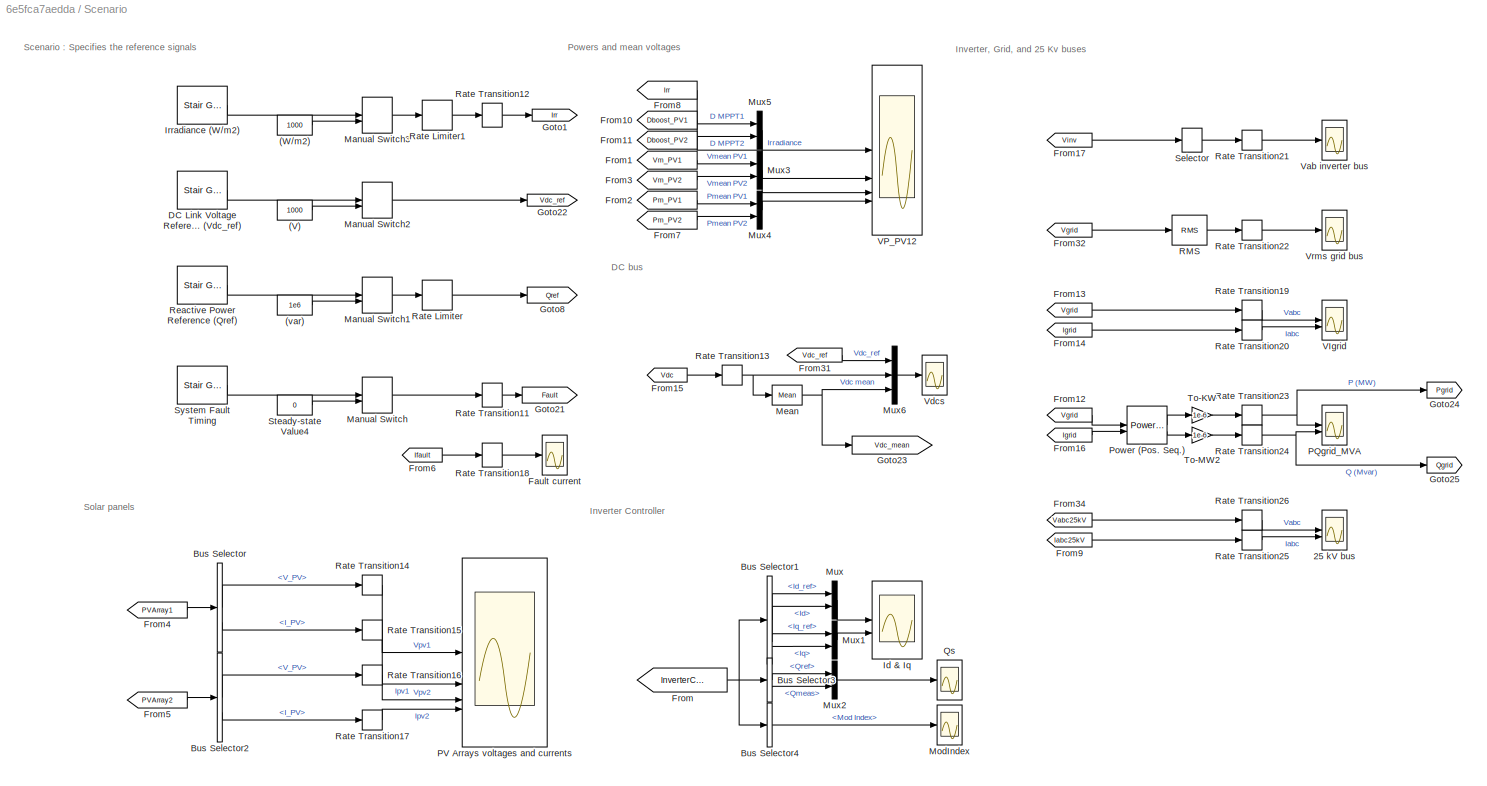
BLOCK [SubSystem] Scenario
BLOCK [Constant] Scenario/(V)
  Value = 1000
BLOCK [Constant] Scenario/(W//m2)
  Value = 1000
BLOCK [Constant] Scenario/(var)
  Value = 1e6
BLOCK [Scope] Scenario/25 kV bus
  Floating = off
  NumInputPorts = 2
  ScopeSpecificationString = Simulink.scopes.TimeScopeBlockCfg('CurrentConfiguration', extmgr.ConfigurationSet(extmgr.Configuration('Core','General UI',true),extmgr.Configuration('Core','Source UI',true),extmgr.Configuration('Sources','WiredSimulink',true,'DataLoggingVariableName','ScopeData7','DataLoggingSaveFormat','StructureWithTime','DataLoggingDecimation','100'),extmgr.Configuration('Visuals','Time Domain',true,'Serializ...<+2198ch>
BLOCK [BusSelector] Scenario/Bus Selector
  OutputSignals = V_PV,I_PV
BLOCK [BusSelector] Scenario/Bus Selector1
  OutputSignals = Id_ref,Id,Iq_ref,Iq
BLOCK [BusSelector] Scenario/Bus Selector2
  OutputSignals = V_PV,I_PV
BLOCK [BusSelector] Scenario/Bus Selector3
  OutputSignals = Qref,Qmeas
BLOCK [BusSelector] Scenario/Bus Selector4
  OutputSignals = Mod Index
BLOCK [Reference] Scenario/DC Link Voltage Reference (Vdc_ref)  REF=spsStairGeneratorLib/Stair
Generator
  LibrarySourceBlock = sps_lib/Sources/Signal Generator Sources/Stair\nGenerator
  SourceBlock = spsStairGeneratorLib/Stair\nGenerator
  SourceType = Stair Generator
BLOCK [Scope] Scenario/Fault current
  Floating = off
  NumInputPorts = 1
  ScopeSpecificationString = Simulink.scopes.TimeScopeBlockCfg('CurrentConfiguration', extmgr.ConfigurationSet(extmgr.Configuration('Core','General UI',true),extmgr.Configuration('Core','Source UI',true),extmgr.Configuration('Sources','WiredSimulink',true,'DataLoggingVariableName','ScopeData2','DataLoggingSaveFormat','StructureWithTime','DataLoggingDecimation','100','DataLogging',true),extmgr.Configuration('Visuals','Time Dom...<+1617ch>
BLOCK [From] Scenario/From
  GotoTag = InverterControl
  TagVisibility = global
BLOCK [From] Scenario/From1
  GotoTag = Vm_PV1
  TagVisibility = global
BLOCK [From] Scenario/From10
  GotoTag = Dboost_PV1
  TagVisibility = global
BLOCK [From] Scenario/From11
  GotoTag = Dboost_PV2
  TagVisibility = global
BLOCK [From] Scenario/From12
  GotoTag = Vgrid
  TagVisibility = global
BLOCK [From] Scenario/From13
  GotoTag = Vgrid
  TagVisibility = global
BLOCK [From] Scenario/From14
  GotoTag = Igrid
  TagVisibility = global
BLOCK [From] Scenario/From15
  GotoTag = Vdc
  TagVisibility = global
BLOCK [From] Scenario/From16
  GotoTag = Igrid
  TagVisibility = global
BLOCK [From] Scenario/From17
  GotoTag = Vinv
  TagVisibility = global
BLOCK [From] Scenario/From2
  GotoTag = Pm_PV1
  TagVisibility = global
BLOCK [From] Scenario/From3
  GotoTag = Vm_PV2
  TagVisibility = global
BLOCK [From] Scenario/From31
  GotoTag = Vdc_ref
  TagVisibility = global
BLOCK [From] Scenario/From32
  GotoTag = Vgrid
  TagVisibility = global
BLOCK [From] Scenario/From34
  GotoTag = Vabc25kV
  TagVisibility = global
BLOCK [From] Scenario/From4
  GotoTag = PVArray1
  TagVisibility = global
BLOCK [From] Scenario/From5
  GotoTag = PVArray2
  TagVisibility = global
BLOCK [From] Scenario/From6
  GotoTag = Ifault
  TagVisibility = global
BLOCK [From] Scenario/From7
  GotoTag = Pm_PV2
  TagVisibility = global
BLOCK [From] Scenario/From8
  GotoTag = Irr
  TagVisibility = global
BLOCK [From] Scenario/From9
  GotoTag = Iabc25kV
  TagVisibility = global
BLOCK [Goto] Scenario/Goto1
  GotoTag = Irr
  TagVisibility = global
BLOCK [Goto] Scenario/Goto21
  GotoTag = Fault
  TagVisibility = global
BLOCK [Goto] Scenario/Goto22
  GotoTag = Vdc_ref
  TagVisibility = global
BLOCK [Goto] Scenario/Goto23
  GotoTag = Vdc_mean
  TagVisibility = global
BLOCK [Goto] Scenario/Goto24
  GotoTag = Pgrid
  TagVisibility = global
BLOCK [Goto] Scenario/Goto25
  GotoTag = Qgrid
  TagVisibility = global
BLOCK [Goto] Scenario/Goto8
  GotoTag = Qref
  TagVisibility = global
BLOCK [Scope] Scenario/Id & Iq
  Floating = off
  NumInputPorts = 2
  ScopeSpecificationString = Simulink.scopes.TimeScopeBlockCfg('CurrentConfiguration', extmgr.ConfigurationSet(extmgr.Configuration('Core','General UI',true),extmgr.Configuration('Core','Source UI',true),extmgr.Configuration('Sources','WiredSimulink',true,'DataLoggingVariableName','ScopeData1'),extmgr.Configuration('Visuals','Time Domain',true,'SerializedDisplays',{struct('MinYLimReal','-0.28082','MaxYLimReal','1.27803','YLab...<+2077ch>
BLOCK [Reference] Scenario/Irradiance (W//m2)  REF=spsStairGeneratorLib/Stair
Generator
  LibrarySourceBlock = sps_lib/Sources/Signal Generator Sources/Stair\nGenerator
  SourceBlock = spsStairGeneratorLib/Stair\nGenerator
  SourceType = Stair Generator
BLOCK [ManualSwitch] Scenario/Manual Switch
BLOCK [ManualSwitch] Scenario/Manual Switch1
  CurrentSetting = 0
BLOCK [ManualSwitch] Scenario/Manual Switch2
  CurrentSetting = 0
BLOCK [ManualSwitch] Scenario/Manual Switch3
  CurrentSetting = 0
BLOCK [Reference] Scenario/Mean  REF=spsMeanLib/Mean
  LibrarySourceBlock = sps_lib/Sensors and Measurements/Mean
  SourceBlock = spsMeanLib/Mean
  SourceType = Mean
BLOCK [Scope] Scenario/ModIndex
  Floating = off
  NumInputPorts = 1
  ScopeSpecificationString = Simulink.scopes.TimeScopeBlockCfg('CurrentConfiguration', extmgr.ConfigurationSet(extmgr.Configuration('Core','General UI',true),extmgr.Configuration('Core','Source UI',true),extmgr.Configuration('Sources','WiredSimulink',true,'DataLoggingVariableName','ScopeData3'),extmgr.Configuration('Visuals','Time Domain',true,'SerializedDisplays',{struct('MinYLimReal','0.6078','MaxYLimReal','0.94896','YLabel...<+1466ch>
BLOCK [Mux] Scenario/Mux
  DisplayOption = bar
  Inputs = 2
BLOCK [Mux] Scenario/Mux1
  DisplayOption = bar
  Inputs = 2
BLOCK [Mux] Scenario/Mux2
  DisplayOption = bar
  Inputs = 2
BLOCK [Mux] Scenario/Mux3
  DisplayOption = bar
  Inputs = 2
BLOCK [Mux] Scenario/Mux4
  DisplayOption = bar
  Inputs = 2
BLOCK [Mux] Scenario/Mux5
  DisplayOption = bar
  Inputs = 2
BLOCK [Mux] Scenario/Mux6
  DisplayOption = bar
  Inputs = 3
BLOCK [Scope] Scenario/PQgrid_MVA
  Floating = off
  NumInputPorts = 2
  ScopeSpecificationString = Simulink.scopes.TimeScopeBlockCfg('CurrentConfiguration', extmgr.ConfigurationSet(extmgr.Configuration('Core','General UI',true),extmgr.Configuration('Core','Source UI',true),extmgr.Configuration('Sources','WiredSimulink',true,'DataLoggingVariableName','ScopeData4','DataLogging',true,'DataLoggingSaveFormat','StructureWithTime'),extmgr.Configuration('Visuals','Time Domain',true,'SerializedDisplays'...<+2180ch>
BLOCK [Scope] Scenario/PV Arrays voltages and currents
  Floating = off
  NumInputPorts = 4
  ScopeSpecificationString = Simulink.scopes.TimeScopeBlockCfg('CurrentConfiguration', extmgr.ConfigurationSet(extmgr.Configuration('Core','General UI',true),extmgr.Configuration('Core','Source UI',true),extmgr.Configuration('Sources','WiredSimulink',true,'DataLoggingVariableName','ScopeData6','DataLogging',true,'DataLoggingSaveFormat','StructureWithTime'),extmgr.Configuration('Visuals','Time Domain',true,'SerializedDisplays'...<+3542ch>
BLOCK [Reference] Scenario/Power (Pos. Seq.)  REF=spsPowerPositiveSequenceLib/Power
(Positive-Sequence)
  LibrarySourceBlock = sps_lib/Sensors and Measurements/Power\n(Positive-Sequence)
  SourceBlock = spsPowerPositiveSequenceLib/Power\n(Positive-Sequence)
  SourceType = Power (Positive-Sequence)
BLOCK [Scope] Scenario/Qs
  Floating = off
  NameLocation = top
  NumInputPorts = 1
  ScopeSpecificationString = Simulink.scopes.TimeScopeBlockCfg('CurrentConfiguration', extmgr.ConfigurationSet(extmgr.Configuration('Core','General UI',true),extmgr.Configuration('Core','Source UI',true),extmgr.Configuration('Sources','WiredSimulink',true,'DataLoggingVariableName','ScopeData5','DataLogging',true,'DataLoggingSaveFormat','StructureWithTime'),extmgr.Configuration('Visuals','Time Domain',true,'SerializedDisplays'...<+1556ch>
BLOCK [Reference] Scenario/RMS  REF=spsRMSLib/RMS
  LibrarySourceBlock = sps_lib/Sensors and Measurements/RMS
  SourceBlock = spsRMSLib/RMS
  SourceType = RMS
BLOCK [RateLimiter] Scenario/Rate Limiter
  FallingSlewLimit = -1e6/(1/60)
  InitialCondition = 1e6
  RisingSlewLimit = 1e6/(1/60)
  SampleTimeMode = inherited
BLOCK [RateLimiter] Scenario/Rate Limiter1
  FallingSlewLimit = -1000/(1/60)
  InitialCondition = 1000
  RisingSlewLimit = 1000/(1/60)
  SampleTimeMode = inherited
BLOCK [RateTransition] Scenario/Rate Transition11
  OutPortSampleTime = Ts_Power
BLOCK [RateTransition] Scenario/Rate Transition12
  OutPortSampleTime = Ts_Power
BLOCK [RateTransition] Scenario/Rate Transition13
  OutPortSampleTime = Ts
BLOCK [RateTransition] Scenario/Rate Transition14
  OutPortSampleTime = Ts
BLOCK [RateTransition] Scenario/Rate Transition15
  OutPortSampleTime = Ts
BLOCK [RateTransition] Scenario/Rate Transition16
  OutPortSampleTime = Ts
BLOCK [RateTransition] Scenario/Rate Transition17
  OutPortSampleTime = Ts
BLOCK [RateTransition] Scenario/Rate Transition18
  OutPortSampleTime = Ts
BLOCK [RateTransition] Scenario/Rate Transition19
  OutPortSampleTime = Ts
BLOCK [RateTransition] Scenario/Rate Transition20
  OutPortSampleTime = Ts
BLOCK [RateTransition] Scenario/Rate Transition21
  OutPortSampleTime = Ts
BLOCK [RateTransition] Scenario/Rate Transition22
  OutPortSampleTime = Ts
BLOCK [RateTransition] Scenario/Rate Transition23
  OutPortSampleTime = Ts
BLOCK [RateTransition] Scenario/Rate Transition24
  OutPortSampleTime = Ts
BLOCK [RateTransition] Scenario/Rate Transition25
  OutPortSampleTime = Ts
BLOCK [RateTransition] Scenario/Rate Transition26
  OutPortSampleTime = Ts
BLOCK [Reference] Scenario/Reactive Power Reference (Qref)   REF=spsStairGeneratorLib/Stair
Generator
  LibrarySourceBlock = sps_lib/Sources/Signal Generator Sources/Stair\nGenerator
  SourceBlock = spsStairGeneratorLib/Stair\nGenerator
  SourceType = Stair Generator
BLOCK [Selector] Scenario/Selector
  IndexOptions = Index vector (dialog)
  Indices = 1
  InputPortWidth = 3
  OutputSizes = 1
BLOCK [Constant] Scenario/Steady-state Value4
  Value = 0
BLOCK [Reference] Scenario/System Fault Timing  REF=spsStairGeneratorLib/Stair
Generator
  LibrarySourceBlock = sps_lib/Sources/Signal Generator Sources/Stair\nGenerator
  SourceBlock = spsStairGeneratorLib/Stair\nGenerator
  SourceType = Stair Generator
BLOCK [Gain] Scenario/To-KW
  Gain = 1e-6
  NameLocation = top
BLOCK [Gain] Scenario/To-MW2
  Gain = 1e-6
  NameLocation = top
BLOCK [Scope] Scenario/VIgrid
  Floating = off
  NumInputPorts = 2
  ScopeSpecificationString = Simulink.scopes.TimeScopeBlockCfg('CurrentConfiguration', extmgr.ConfigurationSet(extmgr.Configuration('Core','General UI',true),extmgr.Configuration('Core','Source UI',true),extmgr.Configuration('Sources','WiredSimulink',true,'DataLoggingVariableName','ScopeData8','DataLoggingSaveFormat','StructureWithTime','DataLoggingDecimation','100','DataLogging',true),extmgr.Configuration('Visuals','Time Dom...<+2216ch>
BLOCK [Scope] Scenario/VP_PV12
  Floating = off
  NumInputPorts = 4
  ScopeSpecificationString = Simulink.scopes.TimeScopeBlockCfg('CurrentConfiguration', extmgr.ConfigurationSet(extmgr.Configuration('Core','General UI',true),extmgr.Configuration('Core','Source UI',true),extmgr.Configuration('Sources','WiredSimulink',true,'DataLoggingVariableName','ScopeData9','DataLogging',true,'DataLoggingSaveFormat','StructureWithTime'),extmgr.Configuration('Visuals','Time Domain',true,'SerializedDisplays'...<+3665ch>
BLOCK [Scope] Scenario/Vab inverter bus
  Floating = off
  NumInputPorts = 1
  ScopeSpecificationString = Simulink.scopes.TimeScopeBlockCfg('CurrentConfiguration', extmgr.ConfigurationSet(extmgr.Configuration('Core','General UI',true),extmgr.Configuration('Core','Source UI',true),extmgr.Configuration('Sources','WiredSimulink',true,'DataLoggingVariableName','ScopeData10','DataLogging',true,'DataLoggingSaveFormat','StructureWithTime'),extmgr.Configuration('Visuals','Time Domain',true,'SerializedDisplays...<+1540ch>
BLOCK [Scope] Scenario/Vdcs
  Floating = off
  NumInputPorts = 1
  ScopeSpecificationString = Simulink.scopes.TimeScopeBlockCfg('CurrentConfiguration', extmgr.ConfigurationSet(extmgr.Configuration('Core','General UI',true),extmgr.Configuration('Core','Source UI',true),extmgr.Configuration('Sources','WiredSimulink',true,'DataLoggingVariableName','ScopeData11','DataLogging',true,'DataLoggingSaveFormat','StructureWithTime'),extmgr.Configuration('Visuals','Time Domain',true,'SerializedDisplays...<+1624ch>
BLOCK [Scope] Scenario/Vrms grid bus
  Floating = off
  NumInputPorts = 1
  ScopeSpecificationString = Simulink.scopes.TimeScopeBlockCfg('CurrentConfiguration', extmgr.ConfigurationSet(extmgr.Configuration('Core','General UI',true),extmgr.Configuration('Core','Source UI',true),extmgr.Configuration('Sources','WiredSimulink',true,'DataLogging',true,'DataLoggingSaveFormat','StructureWithTime'),extmgr.Configuration('Visuals','Time Domain',true,'SerializedDisplays',{struct('MinYLimReal','3689.47357','Ma...<+1549ch>
BLOCK [Scope] Scope
  Floating = off
  NumInputPorts = 3
  ScopeSpecificationString = Simulink.scopes.TimeScopeBlockCfg('CurrentConfiguration', extmgr.ConfigurationSet(extmgr.Configuration('Core','General UI',true),extmgr.Configuration('Core','Source UI',true),extmgr.Configuration('Sources','WiredSimulink',true,'DataLoggingVariableName','ScopeData1'),extmgr.Configuration('Visuals','Time Domain',true,'SerializedDisplays',{struct('MinYLimReal','69.84941','MaxYLimReal','70.01673','YLa...<+2753ch>
BLOCK [Scope] Scope1
  Floating = off
  NumInputPorts = 1
  ScopeSpecificationString = Simulink.scopes.TimeScopeBlockCfg('CurrentConfiguration', extmgr.ConfigurationSet(extmgr.Configuration('Core','General UI',true),extmgr.Configuration('Core','Source UI',true),extmgr.Configuration('Sources','WiredSimulink',true,'DataLoggingVariableName','ScopeData2'),extmgr.Configuration('Visuals','Time Domain',true,'SerializedDisplays',{struct('MinYLimReal','351.1793','MaxYLimReal','435.42269','YL...<+1492ch>
BLOCK [Scope] Scope2
  Floating = off
  NumInputPorts = 1
  ScopeSpecificationString = Simulink.scopes.TimeScopeBlockCfg('CurrentConfiguration', extmgr.ConfigurationSet(extmgr.Configuration('Core','General UI',true),extmgr.Configuration('Core','Source UI',true),extmgr.Configuration('Sources','WiredSimulink',true,'DataLoggingVariableName','ScopeData1'),extmgr.Configuration('Visuals','Time Domain',true,'SerializedDisplays',{struct('MinYLimReal','-7.5819','MaxYLimReal','68.23714','YLab...<+1380ch>
BLOCK [Scope] Scope3
  Floating = off
  NumInputPorts = 1
  ScopeSpecificationString = Simulink.scopes.TimeScopeBlockCfg('CurrentConfiguration', extmgr.ConfigurationSet(extmgr.Configuration('Core','General UI',true),extmgr.Configuration('Core','Source UI',true),extmgr.Configuration('Sources','WiredSimulink',true,'DataLoggingVariableName','ScopeData2'),extmgr.Configuration('Visuals','Time Domain',true,'SerializedDisplays',{struct('MinYLimReal','0.09','MaxYLimReal','0.11','YLabelReal'...<+1344ch>
BLOCK [Scope] Scope5
  Floating = off
  NumInputPorts = 1
  ScopeSpecificationString = Simulink.scopes.TimeScopeBlockCfg('CurrentConfiguration', extmgr.ConfigurationSet(extmgr.Configuration('Core','General UI',true),extmgr.Configuration('Core','Source UI',true),extmgr.Configuration('Sources','WiredSimulink',true,'DataLoggingVariableName','ScopeData4'),extmgr.Configuration('Visuals','Time Domain',true,'SerializedDisplays',{struct('MinYLimReal','-0.125','MaxYLimReal','1.125','YLabelRe...<+1369ch>
BLOCK [Reference] Series RLC Branch  REF=spsSeriesRLCBranchLib/Series RLC Branch
  LibrarySourceBlock = sps_lib/Passives/Series RLC Branch
  SourceBlock = spsSeriesRLCBranchLib/Series RLC Branch
  SourceType = Series RLC Branch
BLOCK [Reference] Series RLC Branch1  REF=spsSeriesRLCBranchLib/Series RLC Branch
  LibrarySourceBlock = sps_lib/Passives/Series RLC Branch
  SourceBlock = spsSeriesRLCBranchLib/Series RLC Branch
  SourceType = Series RLC Branch
BLOCK [Reference] Series RLC Branch2  REF=spsSeriesRLCBranchLib/Series RLC Branch
  LibrarySourceBlock = sps_lib/Passives/Series RLC Branch
  NameLocation = left
  SourceBlock = spsSeriesRLCBranchLib/Series RLC Branch
  SourceType = Series RLC Branch
BLOCK [Reference] Series RLC Branch3  REF=spsSeriesRLCBranchLib/Series RLC Branch
  LibrarySourceBlock = sps_lib/Passives/Series RLC Branch
  SourceBlock = spsSeriesRLCBranchLib/Series RLC Branch
  SourceType = Series RLC Branch
BLOCK [Reference] Series RLC Branch4  REF=spsSeriesRLCBranchLib/Series RLC Branch
  LibrarySourceBlock = sps_lib/Passives/Series RLC Branch
  NameLocation = left
  SourceBlock = spsSeriesRLCBranchLib/Series RLC Branch
  SourceType = Series RLC Branch
BLOCK [Reference] Series RLC Branch5  REF=spsSeriesRLCBranchLib/Series RLC Branch
  LibrarySourceBlock = sps_lib/Passives/Series RLC Branch
  SourceBlock = spsSeriesRLCBranchLib/Series RLC Branch
  SourceType = Series RLC Branch
BLOCK [SubSystem] Subsystem
  OpenFcn = SystemName1=gcs;\nBlockName1=[SystemName1, '/', 'PV Array 1'];\nset_param(BlockName1,'RobustCellTemperature','25');\nset_param(BlockName1,'ForegroundColor','black');\nBlockName2=[SystemName1, '/', 'PV Array 2'];\nset_param(BlockName2,'RobustCellTemperature','25');\nset_param(BlockName2,'ForegroundColor','black');
BLOCK [SubSystem] Subsystem1
  OpenFcn = SystemName1=gcs;\nBlockName1=[SystemName1, '/', 'PV Array 1'];\nset_param(BlockName1,'RobustCellTemperature','45');\nset_param(BlockName1,'ForegroundColor','red');\nBlockName2=[SystemName1, '/', 'PV Array 2'];\nset_param(BlockName2,'RobustCellTemperature','45');\nset_param(BlockName2,'ForegroundColor','red');
BLOCK [Sum] Sum1
  Inputs = |+-
BLOCK [Reference] Three-Level NPC Converter  REF=spsThreeLevelNPCConverterLib/Three-Level
NPC Converter
  LibrarySourceBlock = sps_lib/Power Electronics/Three-Level\nNPC Converter
  SourceBlock = spsThreeLevelNPCConverterLib/Three-Level\nNPC Converter
  SourceType = Three-Level NPC Converter
BLOCK [Display] Vdc_mean
  Decimation = 200
BLOCK [Reference] Voltage Measurement  REF=spsVoltageMeasurementLib/Voltage Measurement
  LibrarySourceBlock = sps_lib/Sensors and Measurements/Voltage Measurement
  SourceBlock = spsVoltageMeasurementLib/Voltage Measurement
  SourceType = Voltage Measurement
  UserDataPersistent = on
BLOCK [Reference] Voltage Measurement1  REF=spsVoltageMeasurementLib/Voltage Measurement
  LibrarySourceBlock = sps_lib/Sensors and Measurements/Voltage Measurement
  SourceBlock = spsVoltageMeasurementLib/Voltage Measurement
  SourceType = Voltage Measurement
  UserDataPersistent = on
BLOCK [Reference] powergui  REF=sps_lib/powergui
  Priority = 2
  SourceBlock = sps_lib/powergui
  SourceType = PSB option menu block
ANNOTATION (root): 2 MW PV Farm Connected to a 25-kV Distribution System
ANNOTATION (root): This example shows a 2-MW PV Farm connected to a 25-kV distribution system. The blocks in yellow are tuned to perform a simulation using the Switching devices modeling technique for the power electronics blocks. Click here to open the example modified to use the Switching function modeling technique Learn more about this example.
ANNOTATION (root): Double-click to set cells temperature
ANNOTATION (root): Grid
ANNOTATION (root): Solar plant
ANNOTATION Control System/Inverter Control: 0= DC link voltage regulation 1= Active power regulation
ANNOTATION Control System/Inverter Control: INVERTER CONTROL SYSTEM
ANNOTATION Control System/Inverter Control: =============================
ANNOTATION Control System/Inverter Control/Active Power Regulator/PI regulator with anti-windup D: Anti-windup mechanism: Method of conditionnal integration The integration is suspended if saturation occurs and the control error is of the same sign as the control signal. [1] L.Rundqwist, "Anti-Reset Windup for PID Controllers," Ph.D. Thesis TRFT-1033, Departement of Automatic Control, Lund Institute of Technology, Lund, Sweeden, 1991.
ANNOTATION Control System/Inverter Control/Current Regulator: (Vd_prim - Vd_conv) ~= + Iq * Ltot
ANNOTATION Control System/Inverter Control/Current Regulator: (Vq_prim - Vq_conv) ~ = - Id * Ltot
ANNOTATION Control System/Inverter Control/Current Regulator: Current Regulator (with feedforward)
ANNOTATION Control System/Inverter Control/Current Regulator: For Ltot >> Rtot :
ANNOTATION Control System/Inverter Control/Current Regulator: Id positive --> The converter generates active power ("Inverter mode") = Active Power P positive
ANNOTATION Control System/Inverter Control/Current Regulator: Iq positive --> The converter absorbs reactive power ("Inductive mode") = Reactive Power Q negative
ANNOTATION Control System/Inverter Control/Current Regulator: Ltot = Lxfo + Lchoke Rtot = Rxfo + Rchoke
ANNOTATION Control System/Inverter Control/Current Regulator: Sign Convention: Current going out of the converter = positive current
ANNOTATION Control System/Inverter Control/Current Regulator: Vd_mes + Id*R - Iq*L + deriv(Id)*L/wbase= Vd_conv
ANNOTATION Control System/Inverter Control/Current Regulator: Vq_mes + Id*L + Iq*R + deriv(Iq)*L/wbase= Vq_conv
ANNOTATION Control System/Inverter Control/Current Regulator: harmonic filter neglected
ANNOTATION Control System/Inverter Control/Current Regulator/PI regulator with anti-windup D: Anti-windup mechanism: Method of conditionnal integration The integration is suspended if saturation occurs and the control error is of the same sign as the control signal. [1] L.Rundqwist, "Anti-Reset Windup for PID Controllers," Ph.D. Thesis TRFT-1033, Departement of Automatic Control, Lund Institute of Technology, Lund, Sweeden, 1991.
ANNOTATION Control System/Inverter Control/Reactive Power Regulator/PI regulator with anti-windup D: Anti-windup mechanism: Method of conditionnal integration The integration is suspended if saturation occurs and the control error is of the same sign as the control signal. [1] L.Rundqwist, "Anti-Reset Windup for PID Controllers," Ph.D. Thesis TRFT-1033, Departement of Automatic Control, Lund Institute of Technology, Lund, Sweeden, 1991.
ANNOTATION Control System/Inverter Control/VDC Regulator/PI regulator with anti-windup D: Anti-windup mechanism: Method of conditionnal integration The integration is suspended if saturation occurs and the control error is of the same sign as the control signal. [1] L.Rundqwist, "Anti-Reset Windup for PID Controllers," Ph.D. Thesis TRFT-1033, Departement of Automatic Control, Lund Institute of Technology, Lund, Sweeden, 1991.
ANNOTATION Control System/Inverter Control/Vref Generation: (Correction for delai of Ts_Control)
ANNOTATION Control System/Inverter Control/Vref Generation: (Correction for transformer D1 connection)
ANNOTATION Scenario: DC bus
ANNOTATION Scenario: Inverter Controller
ANNOTATION Scenario: Inverter, Grid, and 25 Kv buses
ANNOTATION Scenario: Powers and mean voltages
ANNOTATION Scenario: Scenario : Specifies the reference signals
ANNOTATION Scenario: Solar panels
LINE Battery:1 -> Bus Selector:1
LINE Bus Selector:1 -> Scope:1
LINE Bus Selector:2 -> Scope:2
LINE Bus Selector:3 -> Scope:3
LINE Constant1:1 -> Sum1:2
LINE Constant7:1 -> Boost Converter2:2
LINE Constant8:1 -> Boost Converter1:2
LINE Constant:1 -> Three-Level NPC Converter:2
LINE Control System/Bus Selector2:1 -> Control System/Rate Transition5:1
LINE Control System/Bus Selector2:2 -> Control System/Rate Transition6:1
LINE Control System/Bus Selector:1 -> Control System/Rate Transition3:1
LINE Control System/Bus Selector:2 -> Control System/Rate Transition4:1
LINE Control System/From1:1 -> Control System/Bus Selector:1
LINE Control System/From23:1 -> Control System/Rate Transition7:1
LINE Control System/From24:1 -> Control System/Rate Transition8:1
LINE Control System/From25:1 -> Control System/Rate Transition9:1
LINE Control System/From26:1 -> Control System/Inverter Control:5
LINE Control System/From28:1 -> Control System/Inverter Control:4
LINE Control System/From2:1 -> Control System/Bus Selector2:1
LINE Control System/Inverter Control/Active Power Regulator/Constant1:1 -> Control System/Inverter Control/Active Power Regulator/Switch:1
LINE Control System/Inverter Control/Active Power Regulator/Constant2:1 -> Control System/Inverter Control/Active Power Regulator/Switch:3
LINE Control System/Inverter Control/Active Power Regulator/On:1 -> Control System/Inverter Control/Active Power Regulator/Switch:2
LINE Control System/Inverter Control/Active Power Regulator/PI regulator with anti-windup D:1 -> Control System/Inverter Control/Active Power Regulator/Id_ref:1
LINE Control System/Inverter Control/Active Power Regulator/Pmeas:1 -> Control System/Inverter Control/Active Power Regulator/Sum:2
LINE Control System/Inverter Control/Active Power Regulator/Pref:1 -> Control System/Inverter Control/Active Power Regulator/Sum:1
LINE Control System/Inverter Control/Active Power Regulator/Sum:1 -> Control System/Inverter Control/Active Power Regulator/W->pu1:1
LINE Control System/Inverter Control/Active Power Regulator/Switch:1 -> Control System/Inverter Control/Active Power Regulator/PI regulator with anti-windup D:2
LINE Control System/Inverter Control/Active Power Regulator/W->pu1:1 -> Control System/Inverter Control/Active Power Regulator/PI regulator with anti-windup D:1
LINE Control System/Inverter Control/Active Power Regulator:1 -> Control System/Inverter Control/Switch:1
LINE Control System/Inverter Control/Bus Creator:1 -> Control System/Inverter Control/meas:1
LINE Control System/Inverter Control/Constant1:1 -> Control System/Inverter Control/VDC Regulator:4
LINE Control System/Inverter Control/Constant:1 -> Control System/Inverter Control/VDC Regulator:3
LINE Control System/Inverter Control/Control_Mode:1 -> Control System/Inverter Control/Switch:2
LINE Control System/Inverter Control/Current Regulator/Add1:1 -> Control System/Inverter Control/Current Regulator/Mux:1
LINE Control System/Inverter Control/Current Regulator/Add2:1 -> Control System/Inverter Control/Current Regulator/Saturation:1
LINE Control System/Inverter Control/Current Regulator/Add3:1 -> Control System/Inverter Control/Current Regulator/Mux:2
NET Control System/Inverter Control/Current Regulator/Demux1:1 -> Control System/Inverter Control/Current Regulator/Ltot_pu2:1, Control System/Inverter Control/Current Regulator/Rtot_pu1:1
NET Control System/Inverter Control/Current Regulator/Demux1:2 -> Control System/Inverter Control/Current Regulator/Ltot_pu1:1, Control System/Inverter Control/Current Regulator/Rtot_pu5:1
LINE Control System/Inverter Control/Current Regulator/Demux:1 -> Control System/Inverter Control/Current Regulator/Add1:1
LINE Control System/Inverter Control/Current Regulator/Demux:2 -> Control System/Inverter Control/Current Regulator/Add3:1
LINE Control System/Inverter Control/Current Regulator/IdIq_meas:1 -> Control System/Inverter Control/Current Regulator/Sum:1
NET Control System/Inverter Control/Current Regulator/IdIq_ref:1 -> Control System/Inverter Control/Current Regulator/Demux1:1, Control System/Inverter Control/Current Regulator/Sum:2
LINE Control System/Inverter Control/Current Regulator/Ltot_pu1:1 -> Control System/Inverter Control/Current Regulator/Add1:3
LINE Control System/Inverter Control/Current Regulator/Ltot_pu2:1 -> Control System/Inverter Control/Current Regulator/Add3:3
LINE Control System/Inverter Control/Current Regulator/Mux:1 -> Control System/Inverter Control/Current Regulator/Add2:2
NET Control System/Inverter Control/Current Regulator/PI regulator with anti-windup D:1 -> Control System/Inverter Control/Current Regulator/Add2:1, Control System/Inverter Control/Current Regulator/PIdq:1
LINE Control System/Inverter Control/Current Regulator/Rtot_pu1:1 -> Control System/Inverter Control/Current Regulator/Add1:2
LINE Control System/Inverter Control/Current Regulator/Rtot_pu5:1 -> Control System/Inverter Control/Current Regulator/Add3:2
LINE Control System/Inverter Control/Current Regulator/Saturation:1 -> Control System/Inverter Control/Current Regulator/VdVq_conv:1
LINE Control System/Inverter Control/Current Regulator/Sum:1 -> Control System/Inverter Control/Current Regulator/PI regulator with anti-windup D:1
LINE Control System/Inverter Control/Current Regulator/VdVq_meas:1 -> Control System/Inverter Control/Current Regulator/Demux:1
LINE Control System/Inverter Control/Current Regulator:1 -> Control System/Inverter Control/Vref Generation:2
LINE Control System/Inverter Control/Current Regulator:2 -> Control System/Inverter Control/Goto3:1
LINE Control System/Inverter Control/From10:1 -> Control System/Inverter Control/Bus Creator:9
LINE Control System/Inverter Control/From11:1 -> Control System/Inverter Control/Bus Creator:8
LINE Control System/Inverter Control/From12:1 -> Control System/Inverter Control/Bus Creator:10
NET Control System/Inverter Control/From1:1 -> Control System/Inverter Control/Selector2:1, Control System/Inverter Control/Selector:1
NET Control System/Inverter Control/From2:1 -> Control System/Inverter Control/Selector1:1, Control System/Inverter Control/Selector3:1
NET Control System/Inverter Control/From4:1 -> Control System/Inverter Control/Selector4:1, Control System/Inverter Control/Selector5:1
LINE Control System/Inverter Control/From6:1 -> Control System/Inverter Control/Current Regulator:3
LINE Control System/Inverter Control/From7:1 -> Control System/Inverter Control/Active Power Regulator:1
LINE Control System/Inverter Control/From8:1 -> Control System/Inverter Control/Reactive Power Regulator:1
LINE Control System/Inverter Control/From9:1 -> Control System/Inverter Control/Bus Creator:11
LINE Control System/Inverter Control/From:1 -> Control System/Inverter Control/Bus Creator:5
LINE Control System/Inverter Control/Iabc_prim:1 -> Control System/Inverter Control/PLL & Measurements:2
LINE Control System/Inverter Control/Mux3:1 -> Control System/Inverter Control/Goto1:1
NET Control System/Inverter Control/PLL & Measurements/Iabc_prim:1 -> Control System/Inverter Control/PLL & Measurements/Power (Positive-Sequence):2, Control System/Inverter Control/PLL & Measurements/V->pu1:1
LINE Control System/Inverter Control/PLL & Measurements/PLL (3ph):1 -> Control System/Inverter Control/PLL & Measurements/Freq:1
NET Control System/Inverter Control/PLL & Measurements/PLL (3ph):2 -> Control System/Inverter Control/PLL & Measurements/abc to dq0:2, Control System/Inverter Control/PLL & Measurements/abc to dq1:2, Control System/Inverter Control/PLL & Measurements/wt:1
LINE Control System/Inverter Control/PLL & Measurements/Power (Positive-Sequence):1 -> Control System/Inverter Control/PLL & Measurements/P_meas:1
LINE Control System/Inverter Control/PLL & Measurements/Power (Positive-Sequence):2 -> Control System/Inverter Control/PLL & Measurements/Q_meas:1
LINE Control System/Inverter Control/PLL & Measurements/Selector1:1 -> Control System/Inverter Control/PLL & Measurements/IdIq_meas:1
LINE Control System/Inverter Control/PLL & Measurements/Selector2:1 -> Control System/Inverter Control/PLL & Measurements/VdVq_meas:1
LINE Control System/Inverter Control/PLL & Measurements/V->pu1:1 -> Control System/Inverter Control/PLL & Measurements/abc to dq1:1
NET Control System/Inverter Control/PLL & Measurements/V->pu:1 -> Control System/Inverter Control/PLL & Measurements/PLL (3ph):1, Control System/Inverter Control/PLL & Measurements/abc to dq0:1
NET Control System/Inverter Control/PLL & Measurements/Vabc_prim:1 -> Control System/Inverter Control/PLL & Measurements/Power (Positive-Sequence):1, Control System/Inverter Control/PLL & Measurements/V->pu:1
LINE Control System/Inverter Control/PLL & Measurements/abc to dq0:1 -> Control System/Inverter Control/PLL & Measurements/Selector2:1
LINE Control System/Inverter Control/PLL & Measurements/abc to dq1:1 -> Control System/Inverter Control/PLL & Measurements/Selector1:1
LINE Control System/Inverter Control/PLL & Measurements:1 -> Control System/Inverter Control/Vref Generation:1
LINE Control System/Inverter Control/PLL & Measurements:2 -> Control System/Inverter Control/Current Regulator:1
NET Control System/Inverter Control/PLL & Measurements:3 -> Control System/Inverter Control/Current Regulator:2, Control System/Inverter Control/Goto:1
LINE Control System/Inverter Control/PLL & Measurements:4 -> Control System/Inverter Control/Terminator:1
LINE Control System/Inverter Control/PLL & Measurements:5 -> Control System/Inverter Control/Goto4:1
LINE Control System/Inverter Control/PLL & Measurements:6 -> Control System/Inverter Control/Goto5:1
LINE Control System/Inverter Control/Pref1:1 -> Control System/Inverter Control/Saturation1:1
LINE Control System/Inverter Control/Preg_On:1 -> Control System/Inverter Control/Active Power Regulator:3
LINE Control System/Inverter Control/Qref_in:1 -> Control System/Inverter Control/Saturation2:1
LINE Control System/Inverter Control/Qreg_On1:1 -> Control System/Inverter Control/Vref Generation:3
LINE Control System/Inverter Control/Qreg_On:1 -> Control System/Inverter Control/Reactive Power Regulator:3
LINE Control System/Inverter Control/Reactive Power Regulator/Constant1:1 -> Control System/Inverter Control/Reactive Power Regulator/Switch:1
LINE Control System/Inverter Control/Reactive Power Regulator/Constant2:1 -> Control System/Inverter Control/Reactive Power Regulator/Switch:3
LINE Control System/Inverter Control/Reactive Power Regulator/On:1 -> Control System/Inverter Control/Reactive Power Regulator/Switch:2
LINE Control System/Inverter Control/Reactive Power Regulator/PI regulator with anti-windup D:1 -> Control System/Inverter Control/Reactive Power Regulator/Iq_ref:1
LINE Control System/Inverter Control/Reactive Power Regulator/Qmeas:1 -> Control System/Inverter Control/Reactive Power Regulator/Sum:1
LINE Control System/Inverter Control/Reactive Power Regulator/Qref:1 -> Control System/Inverter Control/Reactive Power Regulator/Sum:2
LINE Control System/Inverter Control/Reactive Power Regulator/Sum:1 -> Control System/Inverter Control/Reactive Power Regulator/W->pu1:1
LINE Control System/Inverter Control/Reactive Power Regulator/Switch:1 -> Control System/Inverter Control/Reactive Power Regulator/PI regulator with anti-windup D:2
LINE Control System/Inverter Control/Reactive Power Regulator/W->pu1:1 -> Control System/Inverter Control/Reactive Power Regulator/PI regulator with anti-windup D:1
LINE Control System/Inverter Control/Reactive Power Regulator:1 -> Control System/Inverter Control/Mux3:2
NET Control System/Inverter Control/Saturation1:1 -> Control System/Inverter Control/Active Power Regulator:2, Control System/Inverter Control/Goto7:1
NET Control System/Inverter Control/Saturation2:1 -> Control System/Inverter Control/Goto6:1, Control System/Inverter Control/Reactive Power Regulator:2
LINE Control System/Inverter Control/Selector1:1 -> Control System/Inverter Control/Bus Creator:2
LINE Control System/Inverter Control/Selector2:1 -> Control System/Inverter Control/Bus Creator:3
LINE Control System/Inverter Control/Selector3:1 -> Control System/Inverter Control/Bus Creator:4
LINE Control System/Inverter Control/Selector4:1 -> Control System/Inverter Control/Bus Creator:6
LINE Control System/Inverter Control/Selector5:1 -> Control System/Inverter Control/Bus Creator:7
LINE Control System/Inverter Control/Selector:1 -> Control System/Inverter Control/Bus Creator:1
LINE Control System/Inverter Control/Switch:1 -> Control System/Inverter Control/Mux3:1
LINE Control System/Inverter Control/VDC Regulator/Ki:1 -> Control System/Inverter Control/VDC Regulator/PI regulator with anti-windup D:3
LINE Control System/Inverter Control/VDC Regulator/Kp:1 -> Control System/Inverter Control/VDC Regulator/PI regulator with anti-windup D:2
LINE Control System/Inverter Control/VDC Regulator/PI regulator with anti-windup D:1 -> Control System/Inverter Control/VDC Regulator/Id_ref:1
LINE Control System/Inverter Control/VDC Regulator/Rtot_pu3:1 -> Control System/Inverter Control/VDC Regulator/PI regulator with anti-windup D:1
LINE Control System/Inverter Control/VDC Regulator/Sum:1 -> Control System/Inverter Control/VDC Regulator/Rtot_pu3:1
LINE Control System/Inverter Control/VDC Regulator/Vdc_meas:1 -> Control System/Inverter Control/VDC Regulator/Sum:1
LINE Control System/Inverter Control/VDC Regulator/Vdc_ref:1 -> Control System/Inverter Control/VDC Regulator/Sum:2
LINE Control System/Inverter Control/VDC Regulator:1 -> Control System/Inverter Control/Switch:3
LINE Control System/Inverter Control/Vabc_prim:1 -> Control System/Inverter Control/PLL & Measurements:1
LINE Control System/Inverter Control/Vdc_meas:1 -> Control System/Inverter Control/VDC Regulator:1
LINE Control System/Inverter Control/Vdc_ref:1 -> Control System/Inverter Control/VDC Regulator:2
LINE Control System/Inverter Control/Vref Generation/Add1:1 -> Control System/Inverter Control/Vref Generation/Add2:2
LINE Control System/Inverter Control/Vref Generation/Add2:1 -> Control System/Inverter Control/Vref Generation/Trigonometric Function:1
LINE Control System/Inverter Control/Vref Generation/Complex to Magnitude-Angle:1 -> Control System/Inverter Control/Vref Generation/Saturation:1
LINE Control System/Inverter Control/Vref Generation/Complex to Magnitude-Angle:2 -> Control System/Inverter Control/Vref Generation/Add2:1
LINE Control System/Inverter Control/Vref Generation/Constant2:1 -> Control System/Inverter Control/Vref Generation/Add1:2
LINE Control System/Inverter Control/Vref Generation/Constant3:1 -> Control System/Inverter Control/Vref Generation/Product:2
LINE Control System/Inverter Control/Vref Generation/Constant4:1 -> Control System/Inverter Control/Vref Generation/Add1:4
LINE Control System/Inverter Control/Vref Generation/Constant:1 -> Control System/Inverter Control/Vref Generation/Add1:3
LINE Control System/Inverter Control/Vref Generation/Demux1:1 -> Control System/Inverter Control/Vref Generation/Real-Imag to Complex:1
LINE Control System/Inverter Control/Vref Generation/Demux1:2 -> Control System/Inverter Control/Vref Generation/Real-Imag to Complex:2
LINE Control System/Inverter Control/Vref Generation/Gain1:1 -> Control System/Inverter Control/Vref Generation/Product:1
LINE Control System/Inverter Control/Vref Generation/Product1:1 -> Control System/Inverter Control/Vref Generation/Demux1:1
LINE Control System/Inverter Control/Vref Generation/Product2:1 -> Control System/Inverter Control/Vref Generation/Vref:1
LINE Control System/Inverter Control/Vref Generation/Product:1 -> Control System/Inverter Control/Vref Generation/Product1:2
LINE Control System/Inverter Control/Vref Generation/Real-Imag to Complex:1 -> Control System/Inverter Control/Vref Generation/Complex to Magnitude-Angle:1
NET Control System/Inverter Control/Vref Generation/Saturation:1 -> Control System/Inverter Control/Vref Generation/ModIndex:1, Control System/Inverter Control/Vref Generation/Product2:1
LINE Control System/Inverter Control/Vref Generation/Trigonometric Function:1 -> Control System/Inverter Control/Vref Generation/Product2:2
LINE Control System/Inverter Control/Vref Generation/VdVq_conv:1 -> Control System/Inverter Control/Vref Generation/Product1:1
LINE Control System/Inverter Control/Vref Generation/Vdc_meas:1 -> Control System/Inverter Control/Vref Generation/Gain1:1
LINE Control System/Inverter Control/Vref Generation/wt:1 -> Control System/Inverter Control/Vref Generation/Add1:1
LINE Control System/Inverter Control/Vref Generation:1 -> Control System/Inverter Control/Vref:1
LINE Control System/Inverter Control/Vref Generation:2 -> Control System/Inverter Control/Goto2:1
LINE Control System/Inverter Control:1 -> Control System/Rate Transition2:1
LINE Control System/Inverter Control:2 -> Control System/Goto7:1
LINE Control System/MPPT Controller 1/First-Order Filter1:1 -> Control System/MPPT Controller 1/MPPT Control 1 :2
LINE Control System/MPPT Controller 1/First-Order Filter:1 -> Control System/MPPT Controller 1/MPPT Control 1 :1
NET Control System/MPPT Controller 1/Ipv:1 -> Control System/MPPT Controller 1/First-Order Filter1:1, Control System/MPPT Controller 1/Product1:2
LINE Control System/MPPT Controller 1/MPPT Control 1 :1 -> Control System/MPPT Controller 1/D:1
LINE Control System/MPPT Controller 1/Mean1:1 -> Control System/MPPT Controller 1/Vmean:1
LINE Control System/MPPT Controller 1/Mean2:1 -> Control System/MPPT Controller 1/Pmean:1
LINE Control System/MPPT Controller 1/Product1:1 -> Control System/MPPT Controller 1/Mean2:1
NET Control System/MPPT Controller 1/Vpv:1 -> Control System/MPPT Controller 1/First-Order Filter:1, Control System/MPPT Controller 1/Mean1:1, Control System/MPPT Controller 1/Product1:1
NET Control System/MPPT Controller 1:1 -> Control System/Goto1:1, Control System/Rate Transition10:1
LINE Control System/MPPT Controller 1:2 -> Control System/Goto9:1
LINE Control System/MPPT Controller 1:3 -> Control System/Goto13:1
LINE Control System/MPPT Controller 2/First-Order Filter1:1 -> Control System/MPPT Controller 2/MPPT Control 1 :2
LINE Control System/MPPT Controller 2/First-Order Filter:1 -> Control System/MPPT Controller 2/MPPT Control 1 :1
NET Control System/MPPT Controller 2/Ipv:1 -> Control System/MPPT Controller 2/First-Order Filter1:1, Control System/MPPT Controller 2/Product1:2
LINE Control System/MPPT Controller 2/MPPT Control 1 :1 -> Control System/MPPT Controller 2/D:1
LINE Control System/MPPT Controller 2/Mean1:1 -> Control System/MPPT Controller 2/Vmean:1
LINE Control System/MPPT Controller 2/Mean2:1 -> Control System/MPPT Controller 2/Pmean:1
LINE Control System/MPPT Controller 2/Product1:1 -> Control System/MPPT Controller 2/Mean2:1
NET Control System/MPPT Controller 2/Vpv:1 -> Control System/MPPT Controller 2/First-Order Filter:1, Control System/MPPT Controller 2/Mean1:1, Control System/MPPT Controller 2/Product1:1
NET Control System/MPPT Controller 2:1 -> Control System/Goto2:1, Control System/Rate Transition1:1
LINE Control System/MPPT Controller 2:2 -> Control System/Goto20:1
LINE Control System/MPPT Controller 2:3 -> Control System/Goto19:1
LINE Control System/PWM Generator 1 (DC-DC):1 -> Control System/Goto10:1
LINE Control System/PWM Generator 2 (DC-DC):1 -> Control System/Goto15:1
LINE Control System/PWM Generator 3 (3-Level):1 -> Control System/Goto11:1
LINE Control System/Rate Transition10:1 -> Control System/PWM Generator 1 (DC-DC):1
LINE Control System/Rate Transition1:1 -> Control System/PWM Generator 2 (DC-DC):1
LINE Control System/Rate Transition2:1 -> Control System/PWM Generator 3 (3-Level):1
LINE Control System/Rate Transition3:1 -> Control System/MPPT Controller 1:1
LINE Control System/Rate Transition4:1 -> Control System/MPPT Controller 1:2
LINE Control System/Rate Transition5:1 -> Control System/MPPT Controller 2:1
LINE Control System/Rate Transition6:1 -> Control System/MPPT Controller 2:2
LINE Control System/Rate Transition7:1 -> Control System/Inverter Control:1
LINE Control System/Rate Transition8:1 -> Control System/Inverter Control:2
LINE Control System/Rate Transition9:1 -> Control System/Inverter Control:3
LINE Current Measurement1:1 -> Goto18:1
NET Current Measurement:1 -> Goto4:1, Scope2:1
LINE From18:1 -> PV Array 1:1
LINE From19:1 -> Three-Level NPC Converter:1
LINE From20:1 -> Boost Converter1:1
LINE From27:1 -> Brk_fault:1
LINE From30:1 -> PV Array 2:1
LINE From33:1 -> Vdc_mean:1
LINE From35:1 -> P (KW):1
LINE From36:1 -> Q (Kvar):1
LINE From3:1 -> Rate Transition2:1
LINE From6:1 -> Boost Converter2:1
NET From:1 -> IGBT1:1, NOT:1
LINE NOT:1 -> IGBT:1
LINE PID Controller1:1 -> Saturation1:1
LINE PV Array 1:1 -> Goto1:1
LINE PV Array 2:1 -> Goto:1
NET PWM Generator (DC-DC)1:1 -> Battery_boostG1:1, Scope5:1
LINE Rate Transition2:1 -> Sum1:1
NET Saturation1:1 -> PWM Generator (DC-DC)1:1, Scope3:1
LINE Scenario/(V):1 -> Scenario/Manual Switch2:2
LINE Scenario/(W//m2):1 -> Scenario/Manual Switch3:2
LINE Scenario/(var):1 -> Scenario/Manual Switch1:2
LINE Scenario/Bus Selector1:1 -> Scenario/Mux:1
LINE Scenario/Bus Selector1:2 -> Scenario/Mux:2
LINE Scenario/Bus Selector1:3 -> Scenario/Mux1:1
LINE Scenario/Bus Selector1:4 -> Scenario/Mux1:2
LINE Scenario/Bus Selector2:1 -> Scenario/Rate Transition16:1
LINE Scenario/Bus Selector2:2 -> Scenario/Rate Transition17:1
LINE Scenario/Bus Selector3:1 -> Scenario/Mux2:1
LINE Scenario/Bus Selector3:2 -> Scenario/Mux2:2
LINE Scenario/Bus Selector4:1 -> Scenario/ModIndex:1
LINE Scenario/Bus Selector:1 -> Scenario/Rate Transition14:1
LINE Scenario/Bus Selector:2 -> Scenario/Rate Transition15:1
LINE Scenario/DC Link Voltage Reference (Vdc_ref):1 -> Scenario/Manual Switch2:1
LINE Scenario/From10:1 -> Scenario/Mux5:1
LINE Scenario/From11:1 -> Scenario/Mux5:2
LINE Scenario/From12:1 -> Scenario/Power (Pos. Seq.):1
LINE Scenario/From13:1 -> Scenario/Rate Transition19:1
LINE Scenario/From14:1 -> Scenario/Rate Transition20:1
LINE Scenario/From15:1 -> Scenario/Rate Transition13:1
LINE Scenario/From16:1 -> Scenario/Power (Pos. Seq.):2
LINE Scenario/From17:1 -> Scenario/Selector:1
LINE Scenario/From1:1 -> Scenario/Mux3:1
LINE Scenario/From2:1 -> Scenario/Mux4:1
LINE Scenario/From31:1 -> Scenario/Mux6:1
LINE Scenario/From32:1 -> Scenario/RMS:1
LINE Scenario/From34:1 -> Scenario/Rate Transition26:1
LINE Scenario/From3:1 -> Scenario/Mux3:2
LINE Scenario/From4:1 -> Scenario/Bus Selector:1
LINE Scenario/From5:1 -> Scenario/Bus Selector2:1
LINE Scenario/From6:1 -> Scenario/Rate Transition18:1
LINE Scenario/From7:1 -> Scenario/Mux4:2
LINE Scenario/From8:1 -> Scenario/VP_PV12:1
LINE Scenario/From9:1 -> Scenario/Rate Transition25:1
NET Scenario/From:1 -> Scenario/Bus Selector1:1, Scenario/Bus Selector3:1, Scenario/Bus Selector4:1
LINE Scenario/Irradiance (W//m2):1 -> Scenario/Manual Switch3:1
LINE Scenario/Manual Switch1:1 -> Scenario/Rate Limiter:1
LINE Scenario/Manual Switch2:1 -> Scenario/Goto22:1
LINE Scenario/Manual Switch3:1 -> Scenario/Rate Limiter1:1
LINE Scenario/Manual Switch:1 -> Scenario/Rate Transition11:1
NET Scenario/Mean:1 -> Scenario/Goto23:1, Scenario/Mux6:3
LINE Scenario/Mux1:1 -> Scenario/Id & Iq:2
LINE Scenario/Mux2:1 -> Scenario/Qs:1
LINE Scenario/Mux3:1 -> Scenario/VP_PV12:3
LINE Scenario/Mux4:1 -> Scenario/VP_PV12:4
LINE Scenario/Mux5:1 -> Scenario/VP_PV12:2
LINE Scenario/Mux6:1 -> Scenario/Vdcs:1
LINE Scenario/Mux:1 -> Scenario/Id & Iq:1
LINE Scenario/Power (Pos. Seq.):1 -> Scenario/To-KW:1
LINE Scenario/Power (Pos. Seq.):2 -> Scenario/To-MW2:1
LINE Scenario/RMS:1 -> Scenario/Rate Transition22:1
LINE Scenario/Rate Limiter1:1 -> Scenario/Rate Transition12:1
LINE Scenario/Rate Limiter:1 -> Scenario/Goto8:1
LINE Scenario/Rate Transition11:1 -> Scenario/Goto21:1
LINE Scenario/Rate Transition12:1 -> Scenario/Goto1:1
NET Scenario/Rate Transition13:1 -> Scenario/Mean:1, Scenario/Mux6:2
LINE Scenario/Rate Transition14:1 -> Scenario/PV Arrays voltages and currents:1
LINE Scenario/Rate Transition15:1 -> Scenario/PV Arrays voltages and currents:2
LINE Scenario/Rate Transition16:1 -> Scenario/PV Arrays voltages and currents:3
LINE Scenario/Rate Transition17:1 -> Scenario/PV Arrays voltages and currents:4
LINE Scenario/Rate Transition18:1 -> Scenario/Fault current:1
LINE Scenario/Rate Transition19:1 -> Scenario/VIgrid:1
LINE Scenario/Rate Transition20:1 -> Scenario/VIgrid:2
LINE Scenario/Rate Transition21:1 -> Scenario/Vab inverter bus:1
LINE Scenario/Rate Transition22:1 -> Scenario/Vrms grid bus:1
NET Scenario/Rate Transition23:1 -> Scenario/Goto24:1, Scenario/PQgrid_MVA:1
NET Scenario/Rate Transition24:1 -> Scenario/Goto25:1, Scenario/PQgrid_MVA:2
LINE Scenario/Rate Transition25:1 -> Scenario/25 kV bus:2
LINE Scenario/Rate Transition26:1 -> Scenario/25 kV bus:1
LINE Scenario/Reactive Power Reference (Qref) :1 -> Scenario/Manual Switch1:1
LINE Scenario/Selector:1 -> Scenario/Rate Transition21:1
LINE Scenario/Steady-state Value4:1 -> Scenario/Manual Switch:2
LINE Scenario/System Fault Timing:1 -> Scenario/Manual Switch:1
LINE Scenario/To-KW:1 -> Scenario/Rate Transition23:1
LINE Scenario/To-MW2:1 -> Scenario/Rate Transition24:1
LINE Sum1:1 -> PID Controller1:1
NET Voltage Measurement1:1 -> Goto3:1, Scope1:1
LINE Voltage Measurement:1 -> Goto2:1
PLINE 120 kV // 25 kV 47 MVA:LConn1 -- 120kV 2500MVA:RConn1
PLINE 120 kV // 25 kV 47 MVA:LConn2 -- 120kV 2500MVA:RConn2
PLINE 120 kV // 25 kV 47 MVA:LConn3 -- 120kV 2500MVA:RConn3
PLINE 120 kV // 25 kV 47 MVA:RConn1 -- 25 Kv bus:LConn1
PLINE 120 kV // 25 kV 47 MVA:RConn2 -- 25 Kv bus:LConn2
PLINE 120 kV // 25 kV 47 MVA:RConn3 -- 25 Kv bus:LConn3
PNET net1: 150 kvar:LConn1 -- 2.25-MVA 500V // 25 kV:RConn1 -- L:RConn1
PNET net2: 150 kvar:LConn2 -- 2.25-MVA 500V // 25 kV:RConn2 -- L:RConn2
PNET net3: 150 kvar:LConn3 -- 2.25-MVA 500V // 25 kV:RConn3 -- L:RConn3
PLINE 2-MW Load:LConn1 -- 6-km Feeder:RConn1
PLINE 2-MW Load:LConn2 -- 6-km Feeder:RConn2
PLINE 2-MW Load:LConn3 -- 6-km Feeder:RConn3
PNET net4: 2-km Feeder:LConn1 -- 25 Kv bus:RConn1 -- 30-MW 2-Mvar Load:LConn1 -- 8-km Feeder:RConn1 -- Grounding Transformer:LConn1
PNET net5: 2-km Feeder:LConn2 -- 25 Kv bus:RConn2 -- 30-MW 2-Mvar Load:LConn2 -- 8-km Feeder:RConn2 -- Grounding Transformer:LConn2
PNET net6: 2-km Feeder:LConn3 -- 25 Kv bus:RConn3 -- 30-MW 2-Mvar Load:LConn3 -- 8-km Feeder:RConn3 -- Grounding Transformer:LConn3
PNET net7: 2-km Feeder:RConn1 -- 6-km Feeder:LConn1 -- Brk_fault:LConn1
PLINE 2-km Feeder:RConn2 -- 6-km Feeder:LConn2
PLINE 2-km Feeder:RConn3 -- 6-km Feeder:LConn3
PLINE 2.25-MVA 500V // 25 kV:LConn1 -- Grid bus:LConn1
PLINE 2.25-MVA 500V // 25 kV:LConn2 -- Grid bus:LConn2
PLINE 2.25-MVA 500V // 25 kV:LConn3 -- Grid bus:LConn3
PLINE 8-km Feeder:LConn1 -- Grid bus:RConn1
PLINE 8-km Feeder:LConn2 -- Grid bus:RConn2
PLINE 8-km Feeder:LConn3 -- Grid bus:RConn3
PNET net8: Battery:LConn1 -- Series RLC Branch2:LConn1 -- Series RLC Branch3:LConn1
PNET net9: Battery:LConn2 -- IGBT1:RConn1 -- Series RLC Branch2:RConn1 -- Series RLC Branch4:RConn1 -- Series RLC Branch5:RConn1 -- Voltage Measurement1:LConn2
PLINE Boost Converter1:LConn1 -- Lpv1:LConn1
PNET net10: Boost Converter1:RConn1 -- Boost Converter2:RConn1 -- Clink P:LConn1 -- Three-Level NPC Converter:RConn1 -- Voltage Measurement:LConn1
PNET net11: Boost Converter1:RConn2 -- Boost Converter2:RConn2 -- Clink M:RConn1 -- PV Array 1:RConn2 -- PV Array 2:RConn2 -- Series RLC Branch1:RConn1 -- Series RLC Branch:RConn1 -- Three-Level NPC Converter:RConn3 -- Voltage Measurement:LConn2
PLINE Boost Converter2:LConn1 -- Lpv2:LConn1
PLINE Brk_fault:RConn1 -- Current Measurement1:LConn1
PNET net12: Clink M:LConn1 -- Clink P:RConn1 -- Three-Level NPC Converter:RConn2
PLINE Current Measurement1:RConn1 -- Ground1:LConn1
PNET net13: Current Measurement:LConn1 -- IGBT:RConn1 -- Series RLC Branch4:LConn1 -- Voltage Measurement1:LConn1
PLINE Current Measurement:RConn1 -- Series RLC Branch5:LConn1
PLINE D1:LConn1 -- PV Array 1:RConn1
PNET net14: D1:RConn1 -- Lpv1:RConn1 -- Series RLC Branch:LConn1
PLINE D2:LConn1 -- PV Array 2:RConn1
PNET net15: D2:RConn1 -- Lpv2:RConn1 -- Series RLC Branch1:LConn1
PLINE Ground2:LConn1 -- Grounding Transformer:RConn1
PNET net16: IGBT1:LConn1 -- IGBT:LConn1 -- Series RLC Branch3:RConn1
PLINE Inverter bus:LConn1 -- Three-Level NPC Converter:LConn1
PLINE Inverter bus:LConn2 -- Three-Level NPC Converter:LConn2
PLINE Inverter bus:LConn3 -- Three-Level NPC Converter:LConn3
PLINE Inverter bus:RConn1 -- L:LConn1
PLINE Inverter bus:RConn2 -- L:LConn2
PLINE Inverter bus:RConn3 -- L:LConn3
note: NET lines group one-source signal fan-out (src -> all destinations, sorted); 1:1 wires keep LINE; PNET lines group multi-terminal physical nets as a canonical sorted terminal list (undirected conserving connections); 2-terminal nets keep the pairwise PLINE form
CHART Control System/MPPT Controller 2/MPPT Control 1  states=1 transitions=1
  STATE_LABEL 'eML_blk_kernel()'
  STATE_LABEL 'SCRIPT:\nfunction D  = PandO(V, I, Dmax, Dmin, deltaD, Dinit)\n\n% MPPT controller based on the Perturb & Observe algorithm.\n\n% D output = Duty cycle of the boost converter (value between 0 and 1)\n% V input = PV array terminal voltage (V)\n% I input = PV array current (A)\n% D = 1 - Vinput/Voutput (increasing D decrease Vin)\n\npersistent Vold Pold Dold;\n%\nif isempty(Vold)\n    Vold=0;\n    Pold=0;\n    Dol...<+407ch>'
CHART Control System/MPPT Controller 1/MPPT Control 1  states=1 transitions=1
  STATE_LABEL 'eML_blk_kernel()'
  STATE_LABEL 'SCRIPT:\nfunction D  = PandO(V, I, Dmax, Dmin, deltaD, Dinit)\n\n% MPPT controller based on the Perturb & Observe algorithm.\n\n% D output = Duty cycle of the boost converter (value between 0 and 1)\n% V input = PV array terminal voltage (V)\n% I input = PV array current (A)\n% D = 1 - Vinput/Voutput (increasing D decrease Vin)\n\npersistent Vold Pold Dold;\n%\nif isempty(Vold)\n    Vold=0;\n    Pold=0;\n    Dol...<+407ch>'
CHART  states=0 transitions=0
CHART  states=0 transitions=0
